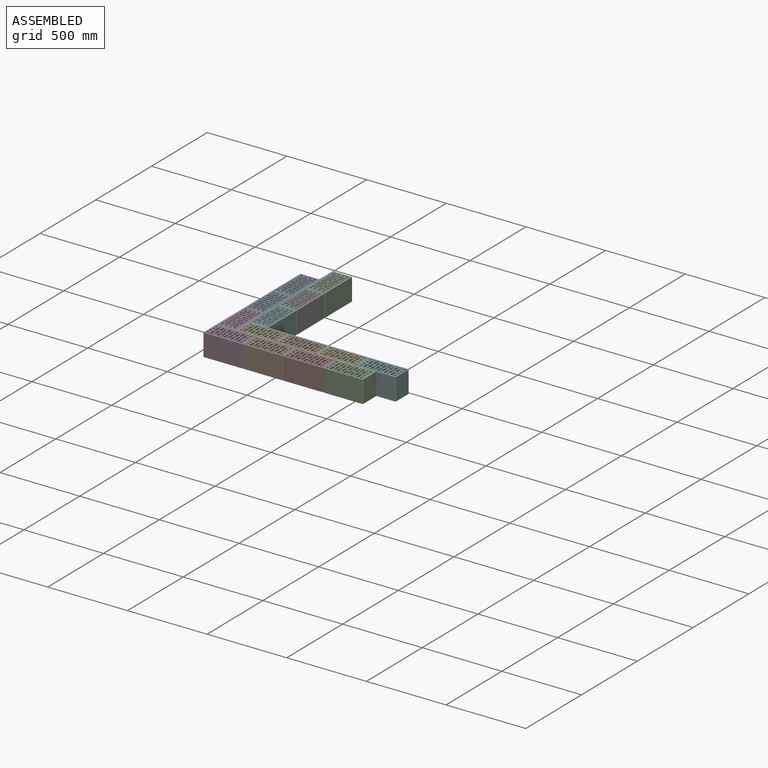
[diagram: assembled view]
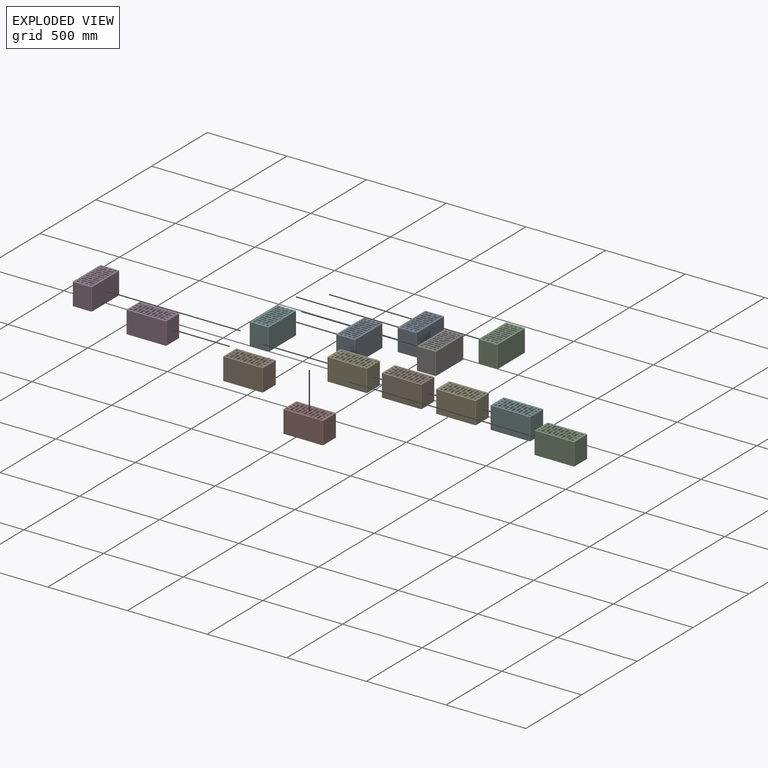
[diagram: exploded view]
GUIDED TOUR — MATED ASSEMBLY (Onshape document d00dda605315c99455ef604f, AutoMate assembly d00dda605315c99455ef604f_c54329f47a431f72054a30cd_6bd2495ca805d1d809e94f07_default)

This assembly has 14 components, labeled P0..P13 below (a component is one placed occurrence of a part; the same part can appear more than once), held together by 9 mates. A mate is a constraint between two components; its type names the relative motion it leaves free:
  PLANAR — leaves sliding in the plane through the listed point (normal = the listed direction) and rotation about that normal free.
Axis/direction vectors are unit vectors and 'through' points are millimeter coordinates, both in the assembly's world frame.

MATES
  1. PLANAR "Planar 1": P3 <-> P11, direction (0.000, -1.000, 0.000) through (6.62, -196.38, 153.38) mm
  2. PLANAR "Planar 5": P4 <-> P3, direction (-1.000, 0.000, 0.000) through (67.62, -136.38, 222.38) mm
  3. PLANAR "Planar 9": P13 <-> P3, direction (-1.000, 0.000, 0.000) through (67.62, 49.62, 222.38) mm
  4. PLANAR "Planar 4": P4 <-> P3, direction (0.000, 0.000, 1.000) through (180.09, -132.63, 291.38) mm
  5. PLANAR "Planar 8": P13 <-> P3, direction (0.000, 0.000, -1.000) through (161.12, 16.88, 291.38) mm
  6. PLANAR "Planar 3": P3 <-> P11, direction (0.000, 0.000, 1.000) through (-4.13, -82.92, 291.38) mm
  7. PLANAR "Planar 6": P4 <-> P11, direction (0.000, -1.000, 0.000) through (192.62, -196.38, 222.38) mm
  8. PLANAR "Planar 7": P13 <-> P4, direction (0.000, -1.000, 0.000) through (127.62, -75.38, 222.38) mm
  9. PLANAR "Planar 2": P11 <-> P3, direction (-1.000, 0.000, 0.000) through (-53.38, -257.38, 222.38) mm

ASSEMBLY ORDER
  1. P13 — the base component [order verified]
  2. P6 [order verified]
  3. P2 [order verified]
  4. P8 [order verified]
  5. P11 [order verified]
  6. P0 [order verified]
  7. P4 [order verified]
  8. P1 [order verified]
  9. P12 [order verified]
  10. P3 [order verified]
  11. P5 [order verified]
  12. P10 [order verified]
  13. P9 [order verified]
  14. P7 [order verified]
Order-tag legend:
  [order verified] — this step's position reverses a verified removal order: the component was checked to insert without passing through the ones already placed.

Of the 14 components, 14 carry the full construction recipe — the FeatureScript program that regenerates the part's solid from scratch; the rest are supplied as boundary geometry only.
Because this assembly has more than 12 components, the tour below covers the 12 most significant ones individually (every recipe-attached component first, then the largest by part volume), in assembly order; the remaining 2 are summarized together in a grouped section at the end.
Each toured component is shown spotlighted twice — in the assembled view, then in the exploded view, where a leader line traces a displaced component back to its assembled socket (saturated green if recipe-attached, orange if geometry-only; every other component desaturated gray) — followed by its recipe or geometry summary and the mates that hold it.
NOTE — this tour is split across 2 documents so each fits a 32k-token context. This is document 1: the component sections continue in the remaining 1 document, each repeating the header above.
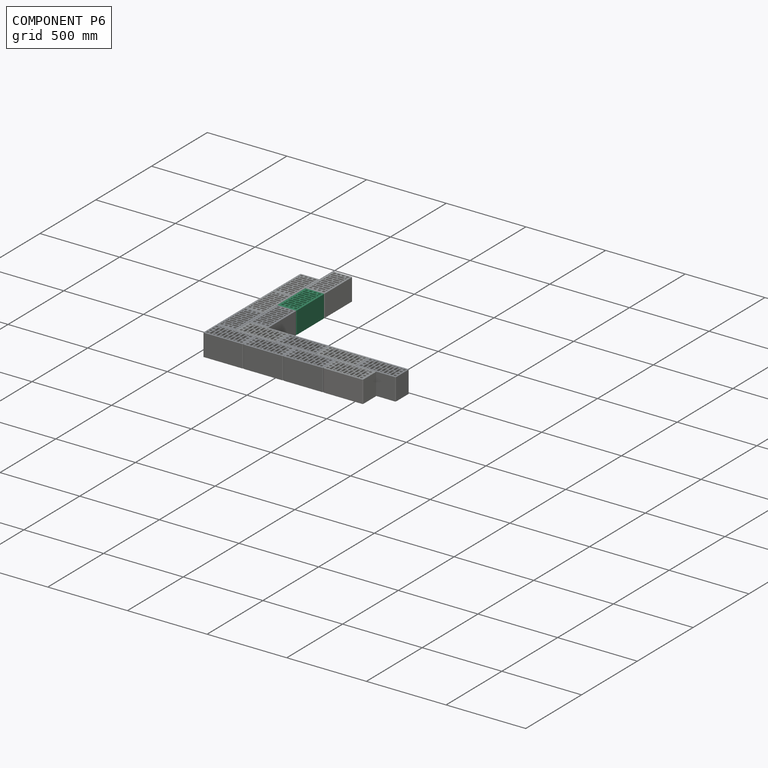
[diagram: component P6 — assembled]
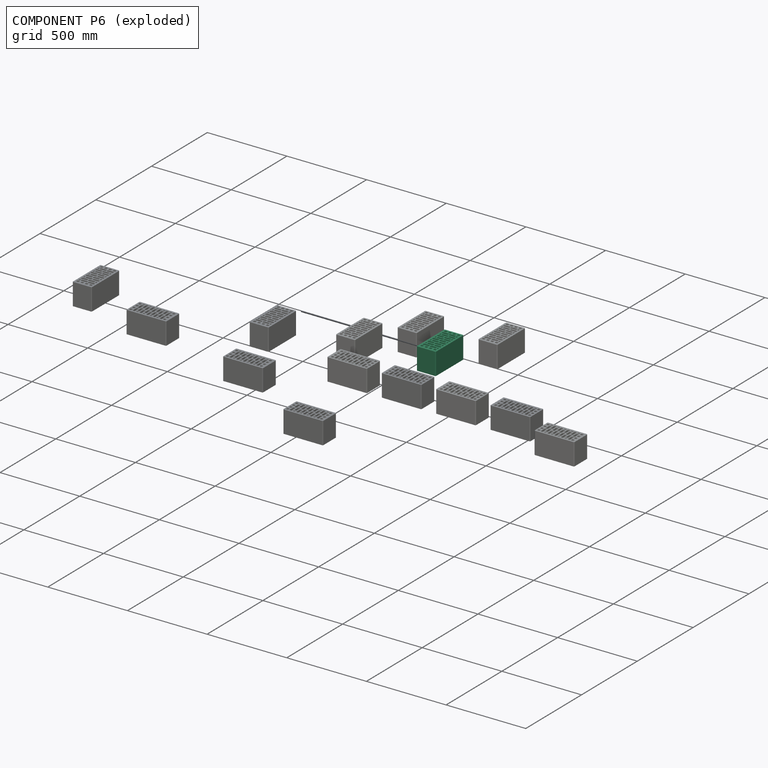
[diagram: component P6 — exploded]
COMPONENT P6 — same part as P0 (CADFS 00792924); its construction recipe is shown at P0.
Held by: no mates (free).
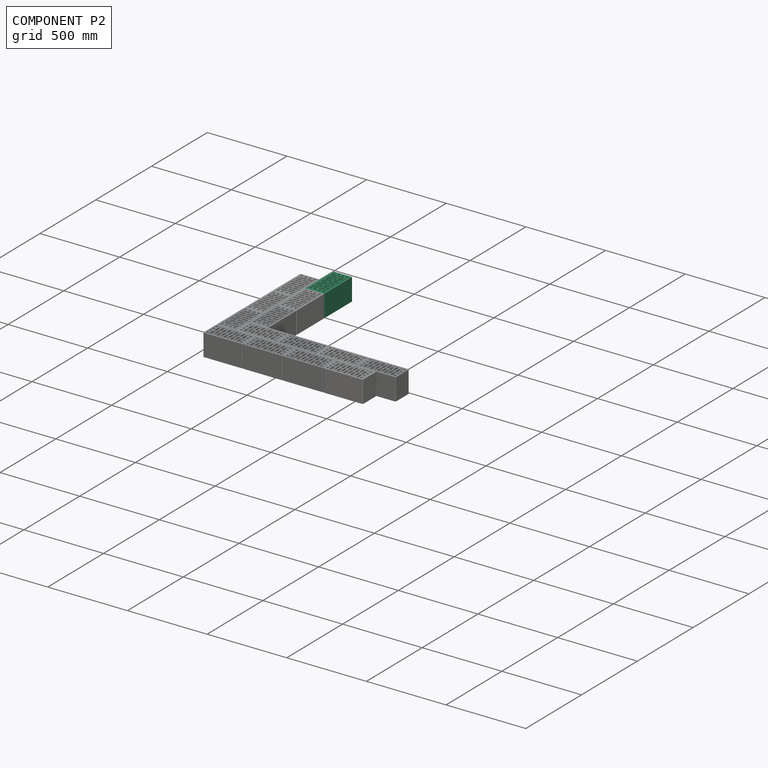
[diagram: component P2 — assembled]
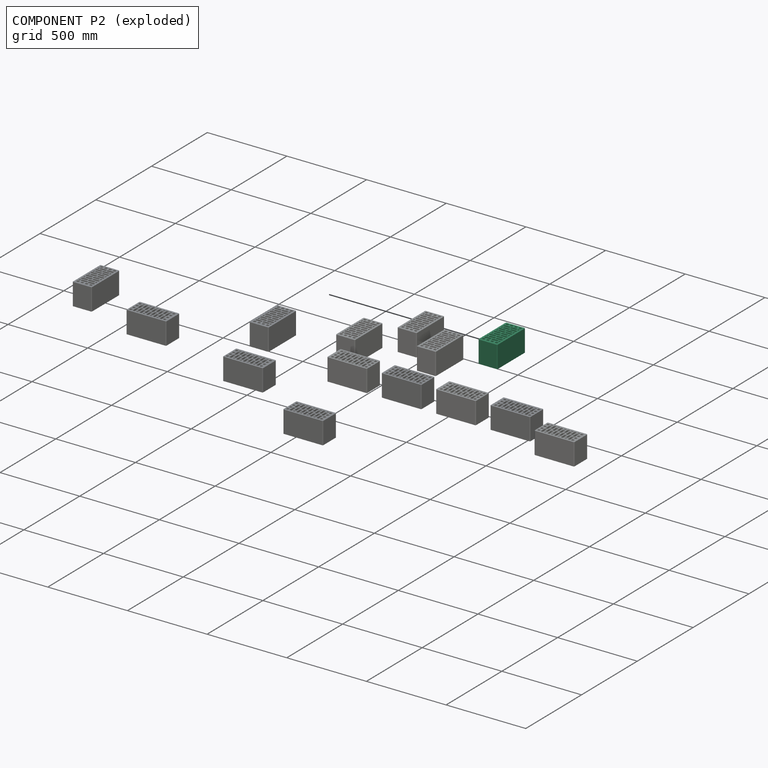
[diagram: component P2 — exploded]
COMPONENT P2 — same part as P0 (CADFS 00792924); its construction recipe is shown at P0.
Held by: no mates (free).
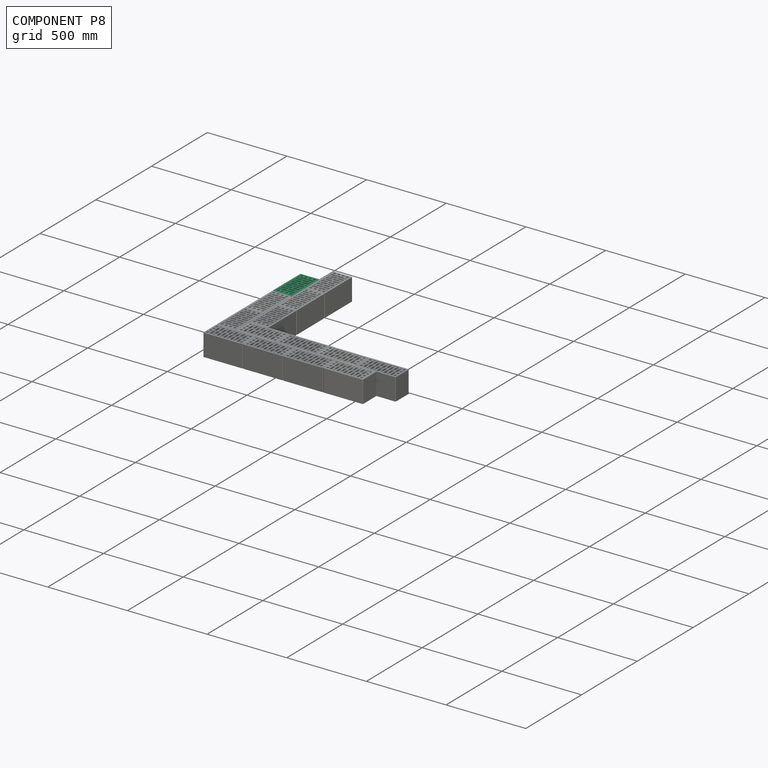
[diagram: component P8 — assembled]
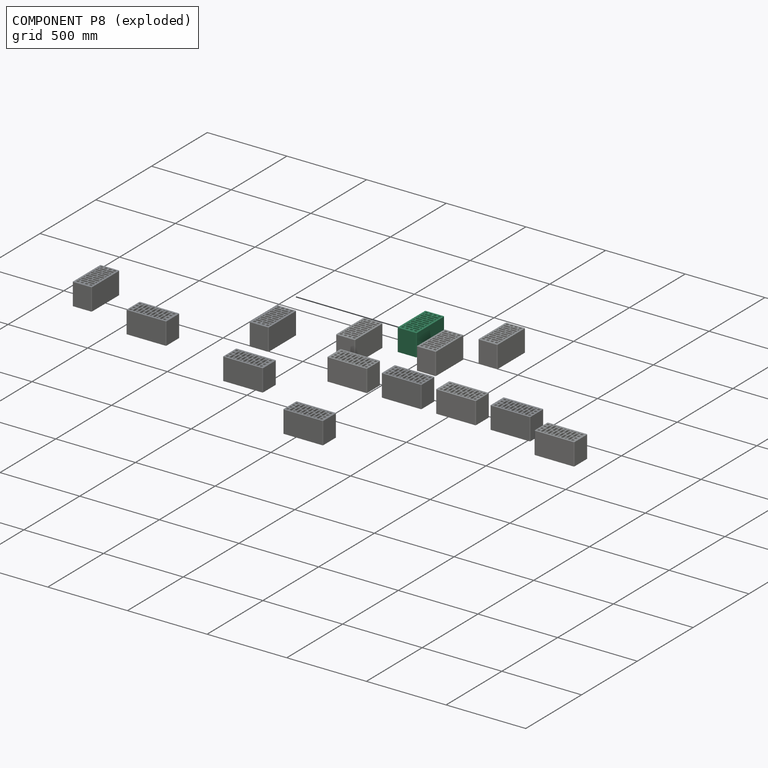
[diagram: component P8 — exploded]
COMPONENT P8 — same part as P0 (CADFS 00792924); its construction recipe is shown at P0.
Held by: no mates (free).
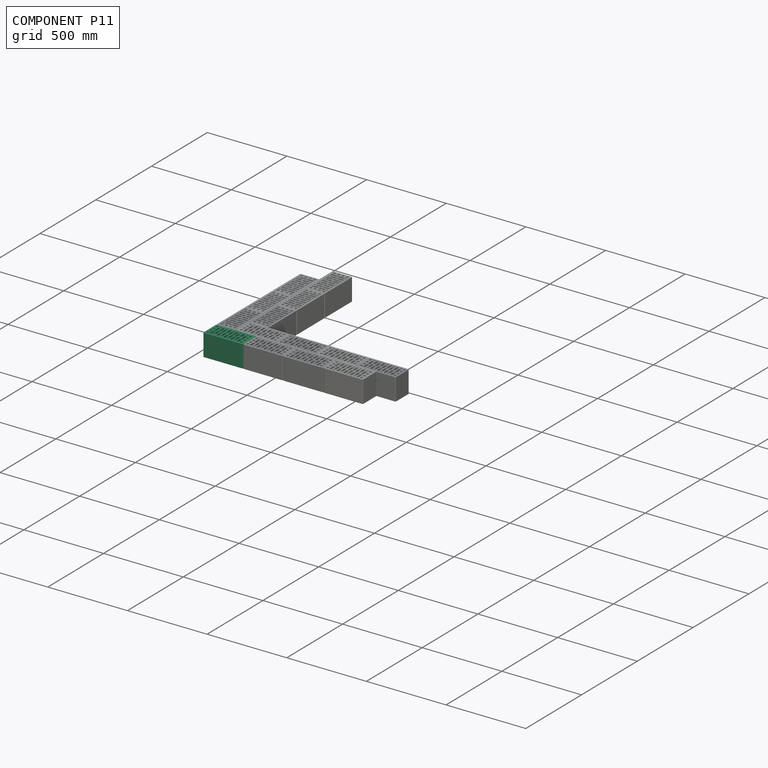
[diagram: component P11 — assembled]
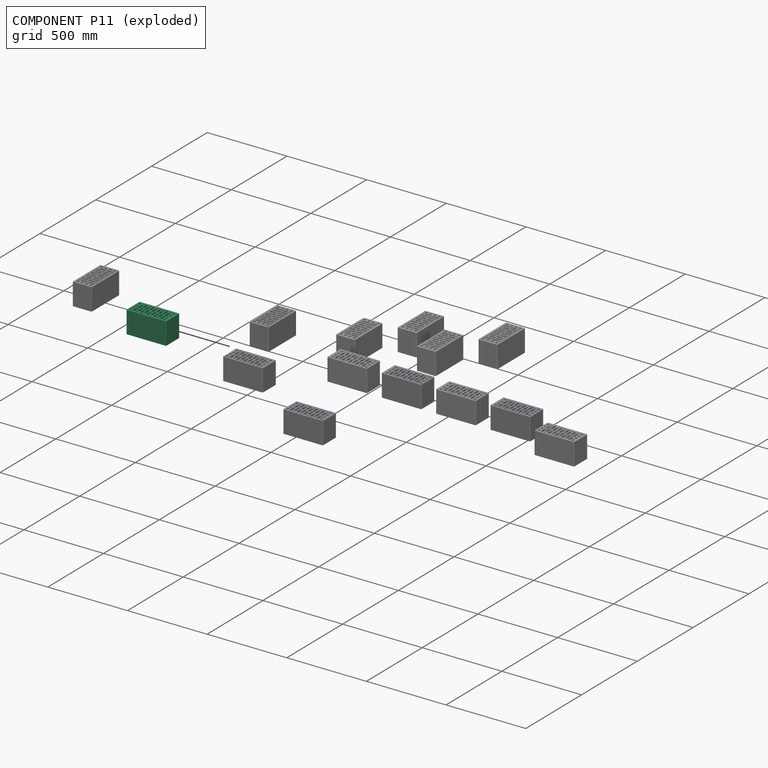
[diagram: component P11 — exploded]
COMPONENT P11 — same part as P0 (CADFS 00792924); its construction recipe is shown at P0.
Held by: PLANAR mate "Planar 1" to P3; PLANAR mate "Planar 3" to P3; PLANAR mate "Planar 6" to P4; PLANAR mate "Planar 2" to P3.
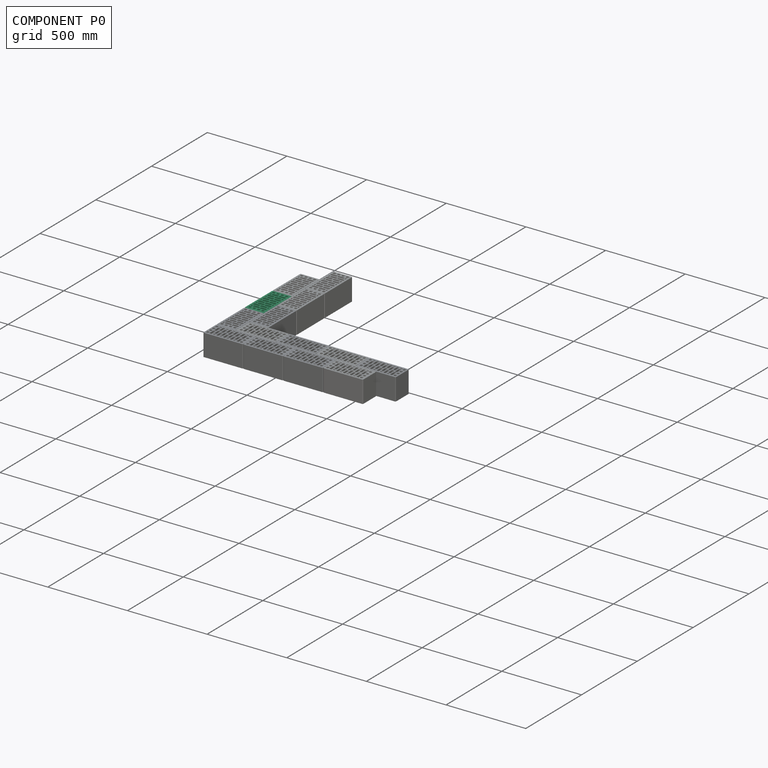
[diagram: component P0 — assembled]
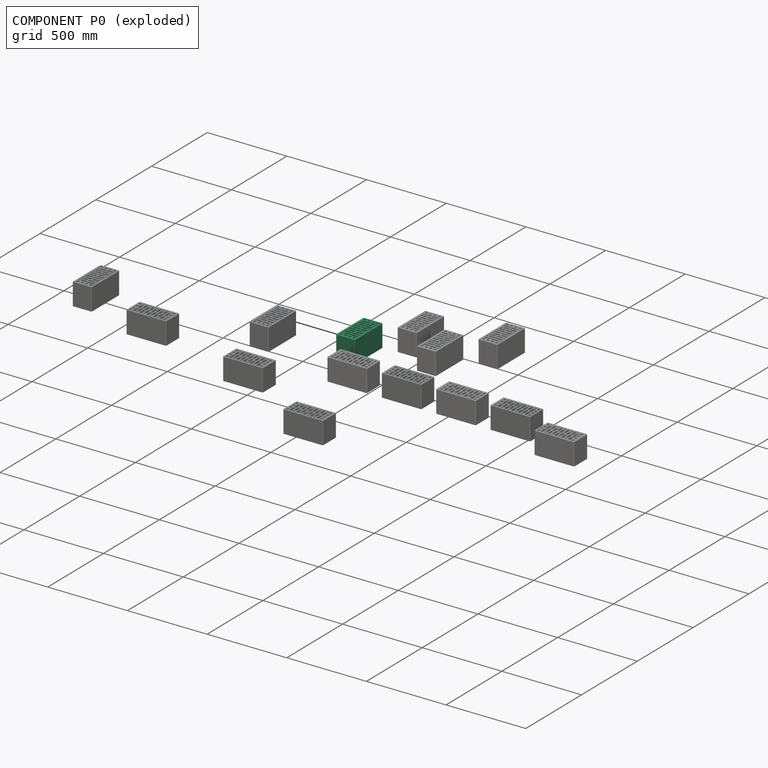
[diagram: component P0 — exploded]
COMPONENT P0 — recipe-attached (CADFS 00792924, mesh-verified: the recipe's output STEP matches this component's geometry to below the mesh-comparison resolution (tessellation chordal tolerance ~0.465 mm)).
Held by: no mates (free).
Construction recipe (FeatureScript — the CAD program that rebuilds this solid; sketch coordinates are in the units given by the * unit suffixes, e.g. mm):

FeatureScript 1511;
import(path : "onshape/std/geometry.fs", version : "1511.0");
import(path : "onshape/std/common.fs", version : "1511.0");
const mm = millimeter;
const VERTEX = EntityType.VERTEX;
const EDGE = EntityType.EDGE;
const FACE = EntityType.FACE;
const BODY = EntityType.BODY;
function v(x, y){return vector(x, y);}
function OD(order){return orderDisambiguation(order);}
function OSD(set){return originalSetDisambiguation(set);}
function TD(topology){return topologyDisambiguation(topology);}
function TDD(query){return trueDependencyDisambiguation(query);}
function sQuery(a, b, c) {return sketchEntityQuery(a, b, c);}

annotation { "Feature Type Name" : "Feature", "Feature Type Description" : "" }
export const myFeature = defineFeature(function(context is Context, id is Id, definition is map)
    precondition{}
    {
        {
            var Q0;
            Q0=qCreatedBy(makeId("Top.planeOp"),FACE);
            var sketch = newSketch(context, id + "F0", { "sketchPlane" : qUnion([Q0])});
            skLineSegment(sketch, "E0.bottom", {"start": v(120, 60) * mm, "end": v(-120, 60) * mm});
            skLineSegment(sketch, "E0.top", {"start": v(120, -60) * mm, "end": v(-120, -60) * mm});
            skLineSegment(sketch, "E0.left", {"start": v(125, 55) * mm, "end": v(125, -55) * mm});
            skLineSegment(sketch, "E0.right", {"start": v(-125, 55) * mm, "end": v(-125, -55) * mm});
            skPoint(sketch, "E0.middle", {"position": v(0, 0) * mm});
            skPoint(sketch, "E1.visualSharp", {"position": v(-125, 60) * mm});
            skArc(sketch, "E1.filletArc", {"start": v(-120, 60) * mm, "mid": v(-123.54, 58.54) * mm, "end": v(-125, 55) * mm});
            skPoint(sketch, "E2.visualSharp", {"position": v(-125, -60) * mm});
            skArc(sketch, "E2.filletArc", {"start": v(-125, -55) * mm, "mid": v(-123.54, -58.54) * mm, "end": v(-120, -60) * mm});
            skPoint(sketch, "E3.visualSharp", {"position": v(125, -60) * mm});
            skArc(sketch, "E3.filletArc", {"start": v(120, -60) * mm, "mid": v(123.54, -58.54) * mm, "end": v(125, -55) * mm});
            skPoint(sketch, "E4.visualSharp", {"position": v(125, 60) * mm});
            skArc(sketch, "E4.filletArc", {"start": v(125, 55) * mm, "mid": v(123.54, 58.54) * mm, "end": v(120, 60) * mm});
            skLineSegment(sketch, "E5.bottom", {"start": v(-97.34, 48) * mm, "end": v(-109.34, 48) * mm});
            skLineSegment(sketch, "E5.top", {"start": v(-97.34, 33) * mm, "end": v(-109.34, 33) * mm});
            skLineSegment(sketch, "E5.left", {"start": v(-96.34, 47) * mm, "end": v(-96.34, 34) * mm});
            skLineSegment(sketch, "E5.right", {"start": v(-110.34, 47) * mm, "end": v(-110.34, 34) * mm});
            skPoint(sketch, "E5.middle", {"position": v(-103.34, 40.5) * mm});
            skPoint(sketch, "E6.visualSharp", {"position": v(-110.34, 48) * mm});
            skArc(sketch, "E6.filletArc", {"start": v(-109.34, 48) * mm, "mid": v(-110.04, 47.7) * mm, "end": v(-110.34, 47) * mm});
            skPoint(sketch, "E7.visualSharp", {"position": v(-96.34, 48) * mm});
            skArc(sketch, "E7.filletArc", {"start": v(-96.34, 47) * mm, "mid": v(-96.63, 47.7) * mm, "end": v(-97.34, 48) * mm});
            skPoint(sketch, "E8.visualSharp", {"position": v(-96.34, 33) * mm});
            skArc(sketch, "E8.filletArc", {"start": v(-97.34, 33) * mm, "mid": v(-96.63, 33.3) * mm, "end": v(-96.34, 34) * mm});
            skPoint(sketch, "E9.visualSharp", {"position": v(-110.34, 33) * mm});
            skArc(sketch, "E9.filletArc", {"start": v(-110.34, 34) * mm, "mid": v(-110.04, 33.3) * mm, "end": v(-109.34, 33) * mm});
            skPoint(sketch, "E10.0.1.0", {"position": v(-103.34, 13.5) * mm});
            skLineSegment(sketch, "E10.0.1.1", {"start": v(-97.34, 21) * mm, "end": v(-109.34, 21) * mm});
            skPoint(sketch, "E10.0.1.2", {"position": v(-110.34, 6) * mm});
            skLineSegment(sketch, "E10.0.1.3", {"start": v(-97.34, 6) * mm, "end": v(-109.34, 6) * mm});
            skLineSegment(sketch, "E10.0.1.4", {"start": v(-96.34, 20) * mm, "end": v(-96.34, 7) * mm});
            skLineSegment(sketch, "E10.0.1.5", {"start": v(-110.34, 20) * mm, "end": v(-110.34, 7) * mm});
            skPoint(sketch, "E10.0.1.6", {"position": v(-110.34, 21) * mm});
            skPoint(sketch, "E10.0.1.7", {"position": v(-96.34, 21) * mm});
            skPoint(sketch, "E10.0.1.8", {"position": v(-96.34, 6) * mm});
            skArc(sketch, "E10.0.1.9", {"start": v(-97.34, 6) * mm, "mid": v(-96.63, 6.3) * mm, "end": v(-96.34, 7) * mm});
            skArc(sketch, "E10.0.1.10", {"start": v(-110.34, 7) * mm, "mid": v(-110.04, 6.3) * mm, "end": v(-109.34, 6) * mm});
            skArc(sketch, "E10.0.1.11", {"start": v(-109.34, 21) * mm, "mid": v(-110.04, 20.7) * mm, "end": v(-110.34, 20) * mm});
            skArc(sketch, "E10.0.1.12", {"start": v(-96.34, 20) * mm, "mid": v(-96.63, 20.7) * mm, "end": v(-97.34, 21) * mm});
            skPoint(sketch, "E10.0.2.0", {"position": v(-103.34, -13.5) * mm});
            skLineSegment(sketch, "E10.0.2.1", {"start": v(-97.34, -6) * mm, "end": v(-109.34, -6) * mm});
            skPoint(sketch, "E10.0.2.2", {"position": v(-110.34, -21) * mm});
            skLineSegment(sketch, "E10.0.2.3", {"start": v(-97.34, -21) * mm, "end": v(-109.34, -21) * mm});
            skLineSegment(sketch, "E10.0.2.4", {"start": v(-96.34, -7) * mm, "end": v(-96.34, -20) * mm});
            skLineSegment(sketch, "E10.0.2.5", {"start": v(-110.34, -7) * mm, "end": v(-110.34, -20) * mm});
            skPoint(sketch, "E10.0.2.6", {"position": v(-110.34, -6) * mm});
            skPoint(sketch, "E10.0.2.7", {"position": v(-96.34, -6) * mm});
            skPoint(sketch, "E10.0.2.8", {"position": v(-96.34, -21) * mm});
            skArc(sketch, "E10.0.2.9", {"start": v(-97.34, -21) * mm, "mid": v(-96.63, -20.7) * mm, "end": v(-96.34, -20) * mm});
            skArc(sketch, "E10.0.2.10", {"start": v(-110.34, -20) * mm, "mid": v(-110.04, -20.7) * mm, "end": v(-109.34, -21) * mm});
            skArc(sketch, "E10.0.2.11", {"start": v(-109.34, -6) * mm, "mid": v(-110.04, -6.3) * mm, "end": v(-110.34, -7) * mm});
            skArc(sketch, "E10.0.2.12", {"start": v(-96.34, -7) * mm, "mid": v(-96.63, -6.3) * mm, "end": v(-97.34, -6) * mm});
            skPoint(sketch, "E10.0.3.0", {"position": v(-103.34, -40.5) * mm});
            skLineSegment(sketch, "E10.0.3.1", {"start": v(-97.34, -33) * mm, "end": v(-109.34, -33) * mm});
            skPoint(sketch, "E10.0.3.2", {"position": v(-110.34, -48) * mm});
            skLineSegment(sketch, "E10.0.3.3", {"start": v(-97.34, -48) * mm, "end": v(-109.34, -48) * mm});
            skLineSegment(sketch, "E10.0.3.4", {"start": v(-96.34, -34) * mm, "end": v(-96.34, -47) * mm});
            skLineSegment(sketch, "E10.0.3.5", {"start": v(-110.34, -34) * mm, "end": v(-110.34, -47) * mm});
            skPoint(sketch, "E10.0.3.6", {"position": v(-110.34, -33) * mm});
            skPoint(sketch, "E10.0.3.7", {"position": v(-96.34, -33) * mm});
            skPoint(sketch, "E10.0.3.8", {"position": v(-96.34, -48) * mm});
            skArc(sketch, "E10.0.3.9", {"start": v(-97.34, -48) * mm, "mid": v(-96.63, -47.7) * mm, "end": v(-96.34, -47) * mm});
            skArc(sketch, "E10.0.3.10", {"start": v(-110.34, -47) * mm, "mid": v(-110.04, -47.7) * mm, "end": v(-109.34, -48) * mm});
            skArc(sketch, "E10.0.3.11", {"start": v(-109.34, -33) * mm, "mid": v(-110.04, -33.3) * mm, "end": v(-110.34, -34) * mm});
            skArc(sketch, "E10.0.3.12", {"start": v(-96.34, -34) * mm, "mid": v(-96.63, -33.3) * mm, "end": v(-97.34, -33) * mm});
            skPoint(sketch, "E10.1.0.0", {"position": v(108.66, 40.5) * mm});
            skLineSegment(sketch, "E10.1.0.1", {"start": v(114.66, 48) * mm, "end": v(102.66, 48) * mm});
            skPoint(sketch, "E10.1.0.2", {"position": v(101.66, 33) * mm});
            skLineSegment(sketch, "E10.1.0.3", {"start": v(114.66, 33) * mm, "end": v(102.66, 33) * mm});
            skLineSegment(sketch, "E10.1.0.4", {"start": v(115.66, 47) * mm, "end": v(115.66, 34) * mm});
            skLineSegment(sketch, "E10.1.0.5", {"start": v(101.66, 47) * mm, "end": v(101.66, 34) * mm});
            skPoint(sketch, "E10.1.0.6", {"position": v(101.66, 48) * mm});
            skPoint(sketch, "E10.1.0.7", {"position": v(115.66, 48) * mm});
            skPoint(sketch, "E10.1.0.8", {"position": v(115.66, 33) * mm});
            skArc(sketch, "E10.1.0.9", {"start": v(114.66, 33) * mm, "mid": v(115.37, 33.3) * mm, "end": v(115.66, 34) * mm});
            skArc(sketch, "E10.1.0.10", {"start": v(101.66, 34) * mm, "mid": v(101.96, 33.3) * mm, "end": v(102.66, 33) * mm});
            skArc(sketch, "E10.1.0.11", {"start": v(102.66, 48) * mm, "mid": v(101.96, 47.7) * mm, "end": v(101.66, 47) * mm});
            skArc(sketch, "E10.1.0.12", {"start": v(115.66, 47) * mm, "mid": v(115.37, 47.7) * mm, "end": v(114.66, 48) * mm});
            skPoint(sketch, "E10.1.1.0", {"position": v(108.66, 13.5) * mm});
            skLineSegment(sketch, "E10.1.1.1", {"start": v(114.66, 21) * mm, "end": v(102.66, 21) * mm});
            skPoint(sketch, "E10.1.1.2", {"position": v(101.66, 6) * mm});
            skLineSegment(sketch, "E10.1.1.3", {"start": v(114.66, 6) * mm, "end": v(102.66, 6) * mm});
            skLineSegment(sketch, "E10.1.1.4", {"start": v(115.66, 20) * mm, "end": v(115.66, 7) * mm});
            skLineSegment(sketch, "E10.1.1.5", {"start": v(101.66, 20) * mm, "end": v(101.66, 7) * mm});
            skPoint(sketch, "E10.1.1.6", {"position": v(101.66, 21) * mm});
            skPoint(sketch, "E10.1.1.7", {"position": v(115.66, 21) * mm});
            skPoint(sketch, "E10.1.1.8", {"position": v(115.66, 6) * mm});
            skArc(sketch, "E10.1.1.9", {"start": v(114.66, 6) * mm, "mid": v(115.37, 6.3) * mm, "end": v(115.66, 7) * mm});
            skArc(sketch, "E10.1.1.10", {"start": v(101.66, 7) * mm, "mid": v(101.96, 6.3) * mm, "end": v(102.66, 6) * mm});
            skArc(sketch, "E10.1.1.11", {"start": v(102.66, 21) * mm, "mid": v(101.96, 20.7) * mm, "end": v(101.66, 20) * mm});
            skArc(sketch, "E10.1.1.12", {"start": v(115.66, 20) * mm, "mid": v(115.37, 20.7) * mm, "end": v(114.66, 21) * mm});
            skPoint(sketch, "E10.1.2.0", {"position": v(108.66, -13.5) * mm});
            skLineSegment(sketch, "E10.1.2.1", {"start": v(114.66, -6) * mm, "end": v(102.66, -6) * mm});
            skPoint(sketch, "E10.1.2.2", {"position": v(101.66, -21) * mm});
            skLineSegment(sketch, "E10.1.2.3", {"start": v(114.66, -21) * mm, "end": v(102.66, -21) * mm});
            skLineSegment(sketch, "E10.1.2.4", {"start": v(115.66, -7) * mm, "end": v(115.66, -20) * mm});
            skLineSegment(sketch, "E10.1.2.5", {"start": v(101.66, -7) * mm, "end": v(101.66, -20) * mm});
            skPoint(sketch, "E10.1.2.6", {"position": v(101.66, -6) * mm});
            skPoint(sketch, "E10.1.2.7", {"position": v(115.66, -6) * mm});
            skPoint(sketch, "E10.1.2.8", {"position": v(115.66, -21) * mm});
            skArc(sketch, "E10.1.2.9", {"start": v(114.66, -21) * mm, "mid": v(115.37, -20.7) * mm, "end": v(115.66, -20) * mm});
            skArc(sketch, "E10.1.2.10", {"start": v(101.66, -20) * mm, "mid": v(101.96, -20.7) * mm, "end": v(102.66, -21) * mm});
            skArc(sketch, "E10.1.2.11", {"start": v(102.66, -6) * mm, "mid": v(101.96, -6.3) * mm, "end": v(101.66, -7) * mm});
            skArc(sketch, "E10.1.2.12", {"start": v(115.66, -7) * mm, "mid": v(115.37, -6.3) * mm, "end": v(114.66, -6) * mm});
            skPoint(sketch, "E10.1.3.0", {"position": v(108.66, -40.5) * mm});
            skLineSegment(sketch, "E10.1.3.1", {"start": v(114.66, -33) * mm, "end": v(102.66, -33) * mm});
            skPoint(sketch, "E10.1.3.2", {"position": v(101.66, -48) * mm});
            skLineSegment(sketch, "E10.1.3.3", {"start": v(114.66, -48) * mm, "end": v(102.66, -48) * mm});
            skLineSegment(sketch, "E10.1.3.4", {"start": v(115.66, -34) * mm, "end": v(115.66, -47) * mm});
            skLineSegment(sketch, "E10.1.3.5", {"start": v(101.66, -34) * mm, "end": v(101.66, -47) * mm});
            skPoint(sketch, "E10.1.3.6", {"position": v(101.66, -33) * mm});
            skPoint(sketch, "E10.1.3.7", {"position": v(115.66, -33) * mm});
            skPoint(sketch, "E10.1.3.8", {"position": v(115.66, -48) * mm});
            skArc(sketch, "E10.1.3.9", {"start": v(114.66, -48) * mm, "mid": v(115.37, -47.7) * mm, "end": v(115.66, -47) * mm});
            skArc(sketch, "E10.1.3.10", {"start": v(101.66, -47) * mm, "mid": v(101.96, -47.7) * mm, "end": v(102.66, -48) * mm});
            skArc(sketch, "E10.1.3.11", {"start": v(102.66, -33) * mm, "mid": v(101.96, -33.3) * mm, "end": v(101.66, -34) * mm});
            skArc(sketch, "E10.1.3.12", {"start": v(115.66, -34) * mm, "mid": v(115.37, -33.3) * mm, "end": v(114.66, -33) * mm});
            skLineSegment(sketch, "E10.direction1", {"start": v(-110.34, 33) * mm, "end": v(101.66, 33) * mm, "construction": true});
            skLineSegment(sketch, "E10.direction2", {"start": v(-110.34, 33) * mm, "end": v(-110.34, 6) * mm, "construction": true});
            skLineSegment(sketch, "E11", {"start": v(-103.56, -60) * mm, "end": v(-103.56, -48) * mm, "construction": true});
            skLineSegment(sketch, "E12", {"start": v(-103.34, -33) * mm, "end": v(-103.34, -21) * mm, "construction": true});
            skLineSegment(sketch, "E13", {"start": v(-103.34, -6) * mm, "end": v(-103.34, 6) * mm, "construction": true});
            skLineSegment(sketch, "E14", {"start": v(-103.34, 21) * mm, "end": v(-103.34, 33) * mm, "construction": true});
            skLineSegment(sketch, "E15", {"start": v(-103.34, 48) * mm, "end": v(-103.34, 60) * mm, "construction": true});
            skSolve(sketch);
        }
        {
            var Q0;
            Q0=makeQuery(id+"F0.imprint","IMPRINT",FACE,{"disambiguationData":[TD([[makeQuery(id+"F0.imprint","IMPRINT",EDGE,{"derivedFrom":sQuery(id+"F0.wireOp",EDGE,"E0.bottom")}),1.0]])]});
            extrude(context, id + "F1", {"entities" : qUnion([Q0]), "depth" : 138 * mm, "offsetDistance" : 25 * mm});
        }
        {
            var Q0;
            Q0=makeQuery(id+"F1.opExtrude","CAP_FACE",FACE,{"disambiguationData":[OSD([sQuery(id+"F0.wireOp",EDGE,"E0.bottom"),sQuery(id+"F0.wireOp",EDGE,"E0.top"),sQuery(id+"F0.wireOp",EDGE,"E0.left"),sQuery(id+"F0.wireOp",EDGE,"E0.right"),sQuery(id+"F0.wireOp",EDGE,"E1.filletArc"),sQuery(id+"F0.wireOp",EDGE,"E2.filletArc"),sQuery(id+"F0.wireOp",EDGE,"E3.filletArc"),sQuery(id+"F0.wireOp",EDGE,"E4.filletArc"),sQuery(id+"F0.wireOp",EDGE,"E5.bottom"),sQuery(id+"F0.wireOp",EDGE,"E5.top"),sQuery(id+"F0.wireOp",EDGE,"E5.left"),sQuery(id+"F0.wireOp",EDGE,"E5.right"),sQuery(id+"F0.wireOp",EDGE,"E6.filletArc"),sQuery(id+"F0.wireOp",EDGE,"E7.filletArc"),sQuery(id+"F0.wireOp",EDGE,"E8.filletArc"),sQuery(id+"F0.wireOp",EDGE,"E9.filletArc"),sQuery(id+"F0.wireOp",EDGE,"E10.0.1.1"),sQuery(id+"F0.wireOp",EDGE,"E10.0.1.3"),sQuery(id+"F0.wireOp",EDGE,"E10.0.1.4"),sQuery(id+"F0.wireOp",EDGE,"E10.0.1.5"),sQuery(id+"F0.wireOp",EDGE,"E10.0.1.9"),sQuery(id+"F0.wireOp",EDGE,"E10.0.1.10"),sQuery(id+"F0.wireOp",EDGE,"E10.0.1.11"),sQuery(id+"F0.wireOp",EDGE,"E10.0.1.12"),sQuery(id+"F0.wireOp",EDGE,"E10.0.2.1"),sQuery(id+"F0.wireOp",EDGE,"E10.0.2.3"),sQuery(id+"F0.wireOp",EDGE,"E10.0.2.4"),sQuery(id+"F0.wireOp",EDGE,"E10.0.2.5"),sQuery(id+"F0.wireOp",EDGE,"E10.0.2.9"),sQuery(id+"F0.wireOp",EDGE,"E10.0.2.10"),sQuery(id+"F0.wireOp",EDGE,"E10.0.2.11"),sQuery(id+"F0.wireOp",EDGE,"E10.0.2.12"),sQuery(id+"F0.wireOp",EDGE,"E10.0.3.1"),sQuery(id+"F0.wireOp",EDGE,"E10.0.3.3"),sQuery(id+"F0.wireOp",EDGE,"E10.0.3.4"),sQuery(id+"F0.wireOp",EDGE,"E10.0.3.5"),sQuery(id+"F0.wireOp",EDGE,"E10.0.3.9"),sQuery(id+"F0.wireOp",EDGE,"E10.0.3.10"),sQuery(id+"F0.wireOp",EDGE,"E10.0.3.11"),sQuery(id+"F0.wireOp",EDGE,"E10.0.3.12"),sQuery(id+"F0.wireOp",EDGE,"E10.1.0.1"),sQuery(id+"F0.wireOp",EDGE,"E10.1.0.3"),sQuery(id+"F0.wireOp",EDGE,"E10.1.0.4"),sQuery(id+"F0.wireOp",EDGE,"E10.1.0.5"),sQuery(id+"F0.wireOp",EDGE,"E10.1.0.9"),sQuery(id+"F0.wireOp",EDGE,"E10.1.0.10"),sQuery(id+"F0.wireOp",EDGE,"E10.1.0.11"),sQuery(id+"F0.wireOp",EDGE,"E10.1.0.12"),sQuery(id+"F0.wireOp",EDGE,"E10.1.1.1"),sQuery(id+"F0.wireOp",EDGE,"E10.1.1.3"),sQuery(id+"F0.wireOp",EDGE,"E10.1.1.4"),sQuery(id+"F0.wireOp",EDGE,"E10.1.1.5"),sQuery(id+"F0.wireOp",EDGE,"E10.1.1.9"),sQuery(id+"F0.wireOp",EDGE,"E10.1.1.10"),sQuery(id+"F0.wireOp",EDGE,"E10.1.1.11"),sQuery(id+"F0.wireOp",EDGE,"E10.1.1.12"),sQuery(id+"F0.wireOp",EDGE,"E10.1.2.1"),sQuery(id+"F0.wireOp",EDGE,"E10.1.2.3"),sQuery(id+"F0.wireOp",EDGE,"E10.1.2.4"),sQuery(id+"F0.wireOp",EDGE,"E10.1.2.5"),sQuery(id+"F0.wireOp",EDGE,"E10.1.2.9"),sQuery(id+"F0.wireOp",EDGE,"E10.1.2.10"),sQuery(id+"F0.wireOp",EDGE,"E10.1.2.11"),sQuery(id+"F0.wireOp",EDGE,"E10.1.2.12"),sQuery(id+"F0.wireOp",EDGE,"E10.1.3.1"),sQuery(id+"F0.wireOp",EDGE,"E10.1.3.3"),sQuery(id+"F0.wireOp",EDGE,"E10.1.3.4"),sQuery(id+"F0.wireOp",EDGE,"E10.1.3.5"),sQuery(id+"F0.wireOp",EDGE,"E10.1.3.9"),sQuery(id+"F0.wireOp",EDGE,"E10.1.3.10"),sQuery(id+"F0.wireOp",EDGE,"E10.1.3.11"),sQuery(id+"F0.wireOp",EDGE,"E10.1.3.12")])],"isStart":false});
            var sketch = newSketch(context, id + "F2", { "sketchPlane" : qUnion([Q0])});
            skLineSegment(sketch, "E16.bottom", {"start": v(-76.14, -9.75) * mm, "end": v(-88.14, -9.75) * mm});
            skLineSegment(sketch, "E16.top", {"start": v(-76.14, -48) * mm, "end": v(-88.14, -48) * mm});
            skLineSegment(sketch, "E16.left", {"start": v(-75.14, -10.75) * mm, "end": v(-75.14, -47) * mm});
            skLineSegment(sketch, "E16.right", {"start": v(-89.14, -10.75) * mm, "end": v(-89.14, -47) * mm});
            skArc(sketch, "E17.filletArc", {"start": v(-88.14, -9.75) * mm, "mid": v(-88.84, -10.04) * mm, "end": v(-89.14, -10.75) * mm});
            skArc(sketch, "E18.filletArc", {"start": v(-75.14, -10.75) * mm, "mid": v(-75.43, -10.04) * mm, "end": v(-76.14, -9.75) * mm});
            skPoint(sketch, "E19.visualSharp", {"position": v(-75.14, -48) * mm});
            skArc(sketch, "E19.filletArc", {"start": v(-76.14, -48) * mm, "mid": v(-75.43, -47.7) * mm, "end": v(-75.14, -47) * mm});
            skPoint(sketch, "E20.visualSharp", {"position": v(-89.14, -48) * mm});
            skArc(sketch, "E20.filletArc", {"start": v(-89.14, -47) * mm, "mid": v(-88.84, -47.7) * mm, "end": v(-88.14, -48) * mm});
            skLineSegment(sketch, "E21", {"start": v(-96.34, -40.5) * mm, "end": v(-89.14, -40.5) * mm, "construction": true});
            skLineSegment(sketch, "E22.bottom", {"start": v(-76.14, 34.5) * mm, "end": v(-88.14, 34.5) * mm});
            skLineSegment(sketch, "E22.top", {"start": v(-76.14, -3.75) * mm, "end": v(-88.14, -3.75) * mm});
            skLineSegment(sketch, "E22.left", {"start": v(-75.14, 33.5) * mm, "end": v(-75.14, -2.75) * mm});
            skLineSegment(sketch, "E22.right", {"start": v(-89.14, 33.5) * mm, "end": v(-89.14, -2.75) * mm});
            skArc(sketch, "E23.filletArc", {"start": v(-88.14, 34.5) * mm, "mid": v(-88.84, 34.2) * mm, "end": v(-89.14, 33.5) * mm});
            skArc(sketch, "E24.filletArc", {"start": v(-75.14, 33.5) * mm, "mid": v(-75.43, 34.2) * mm, "end": v(-76.14, 34.5) * mm});
            skArc(sketch, "E25.filletArc", {"start": v(-76.14, -3.75) * mm, "mid": v(-75.43, -3.46) * mm, "end": v(-75.14, -2.75) * mm});
            skArc(sketch, "E26.filletArc", {"start": v(-89.14, -2.75) * mm, "mid": v(-88.84, -3.46) * mm, "end": v(-88.14, -3.75) * mm});
            skLineSegment(sketch, "E27.bottom", {"start": v(-76.14, 48) * mm, "end": v(-88.14, 48) * mm});
            skLineSegment(sketch, "E27.top", {"start": v(-76.14, 40.5) * mm, "end": v(-88.14, 40.5) * mm});
            skLineSegment(sketch, "E27.left", {"start": v(-75.14, 47) * mm, "end": v(-75.14, 41.5) * mm});
            skLineSegment(sketch, "E27.right", {"start": v(-89.14, 47) * mm, "end": v(-89.14, 41.5) * mm});
            skArc(sketch, "E28.filletArc", {"start": v(-88.14, 48) * mm, "mid": v(-88.84, 47.7) * mm, "end": v(-89.14, 47) * mm});
            skArc(sketch, "E29.filletArc", {"start": v(-75.14, 47) * mm, "mid": v(-75.43, 47.7) * mm, "end": v(-76.14, 48) * mm});
            skArc(sketch, "E30.filletArc", {"start": v(-76.14, 40.5) * mm, "mid": v(-75.43, 40.8) * mm, "end": v(-75.14, 41.5) * mm});
            skArc(sketch, "E31.filletArc", {"start": v(-89.14, 41.5) * mm, "mid": v(-88.84, 40.8) * mm, "end": v(-88.14, 40.5) * mm});
            skLineSegment(sketch, "E32", {"start": v(-82.14, -9.75) * mm, "end": v(-82.14, -3.75) * mm, "construction": true});
            skLineSegment(sketch, "E33", {"start": v(-82.14, 34.5) * mm, "end": v(-82.14, 40.5) * mm, "construction": true});
            skLineSegment(sketch, "E34", {"start": v(-96.34, 44.97) * mm, "end": v(-89.14, 44.97) * mm, "construction": true});
            skPoint(sketch, "E34.endSnap0", {"position": v(-89.14, 44.25) * mm});
            skLineSegment(sketch, "E35", {"start": v(-96.34, 40.5) * mm, "end": v(-88.14, 40.5) * mm, "construction": true});
            skLineSegment(sketch, "E36.bottom", {"start": v(-66.94, 9.75) * mm, "end": v(-54.94, 9.75) * mm});
            skLineSegment(sketch, "E36.top", {"start": v(-66.94, 48) * mm, "end": v(-54.94, 48) * mm});
            skLineSegment(sketch, "E36.left", {"start": v(-67.94, 10.75) * mm, "end": v(-67.94, 47) * mm});
            skLineSegment(sketch, "E36.right", {"start": v(-53.94, 10.75) * mm, "end": v(-53.94, 47) * mm});
            skArc(sketch, "E37.filletArc", {"start": v(-54.94, 9.75) * mm, "mid": v(-54.23, 10.04) * mm, "end": v(-53.94, 10.75) * mm});
            skArc(sketch, "E38.filletArc", {"start": v(-67.94, 10.75) * mm, "mid": v(-67.64, 10.04) * mm, "end": v(-66.94, 9.75) * mm});
            skPoint(sketch, "E39.visualSharp", {"position": v(-67.94, 48) * mm});
            skArc(sketch, "E39.filletArc", {"start": v(-66.94, 48) * mm, "mid": v(-67.64, 47.7) * mm, "end": v(-67.94, 47) * mm});
            skPoint(sketch, "E40.visualSharp", {"position": v(-53.94, 48) * mm});
            skArc(sketch, "E40.filletArc", {"start": v(-53.94, 47) * mm, "mid": v(-54.23, 47.7) * mm, "end": v(-54.94, 48) * mm});
            skLineSegment(sketch, "E41.bottom", {"start": v(-66.94, -34.5) * mm, "end": v(-54.94, -34.5) * mm});
            skLineSegment(sketch, "E41.top", {"start": v(-66.94, 3.75) * mm, "end": v(-54.94, 3.75) * mm});
            skLineSegment(sketch, "E41.left", {"start": v(-67.94, -33.5) * mm, "end": v(-67.94, 2.75) * mm});
            skLineSegment(sketch, "E41.right", {"start": v(-53.94, -33.5) * mm, "end": v(-53.94, 2.75) * mm});
            skArc(sketch, "E42.filletArc", {"start": v(-54.94, -34.5) * mm, "mid": v(-54.23, -34.2) * mm, "end": v(-53.94, -33.5) * mm});
            skArc(sketch, "E43.filletArc", {"start": v(-67.94, -33.5) * mm, "mid": v(-67.64, -34.2) * mm, "end": v(-66.94, -34.5) * mm});
            skArc(sketch, "E44.filletArc", {"start": v(-66.94, 3.75) * mm, "mid": v(-67.64, 3.46) * mm, "end": v(-67.94, 2.75) * mm});
            skArc(sketch, "E45.filletArc", {"start": v(-53.94, 2.75) * mm, "mid": v(-54.23, 3.46) * mm, "end": v(-54.94, 3.75) * mm});
            skLineSegment(sketch, "E46.bottom", {"start": v(-66.94, -48) * mm, "end": v(-54.94, -48) * mm});
            skLineSegment(sketch, "E46.top", {"start": v(-66.94, -40.5) * mm, "end": v(-54.94, -40.5) * mm});
            skLineSegment(sketch, "E46.left", {"start": v(-67.94, -47) * mm, "end": v(-67.94, -41.5) * mm});
            skLineSegment(sketch, "E46.right", {"start": v(-53.94, -47) * mm, "end": v(-53.94, -41.5) * mm});
            skArc(sketch, "E47.filletArc", {"start": v(-54.94, -48) * mm, "mid": v(-54.23, -47.7) * mm, "end": v(-53.94, -47) * mm});
            skArc(sketch, "E48.filletArc", {"start": v(-67.94, -47) * mm, "mid": v(-67.64, -47.7) * mm, "end": v(-66.94, -48) * mm});
            skArc(sketch, "E49.filletArc", {"start": v(-66.94, -40.5) * mm, "mid": v(-67.64, -40.8) * mm, "end": v(-67.94, -41.5) * mm});
            skArc(sketch, "E50.filletArc", {"start": v(-53.94, -41.5) * mm, "mid": v(-54.23, -40.8) * mm, "end": v(-54.94, -40.5) * mm});
            skLineSegment(sketch, "E51", {"start": v(-60.94, 9.75) * mm, "end": v(-60.94, 3.75) * mm, "construction": true});
            skLineSegment(sketch, "E52", {"start": v(-60.94, -34.5) * mm, "end": v(-60.94, -40.5) * mm, "construction": true});
            skPoint(sketch, "E53.endSnap0", {"position": v(-53.94, -44.25) * mm});
            skLineSegment(sketch, "E54", {"start": v(-75.14, 44.25) * mm, "end": v(-67.94, 44.25) * mm, "construction": true});
            skLineSegment(sketch, "E55.1.0.0", {"start": v(-39.74, 34.5) * mm, "end": v(-39.74, 40.5) * mm, "construction": true});
            skPoint(sketch, "E55.1.0.1", {"position": v(-11.54, 48) * mm});
            skLineSegment(sketch, "E55.1.0.2", {"start": v(-33.74, 40.5) * mm, "end": v(-45.74, 40.5) * mm});
            skLineSegment(sketch, "E55.1.0.3", {"start": v(-33.74, 48) * mm, "end": v(-45.74, 48) * mm});
            skPoint(sketch, "E55.1.0.4", {"position": v(-46.74, 44.25) * mm});
            skPoint(sketch, "E55.1.0.5", {"position": v(-11.54, -44.25) * mm});
            skLineSegment(sketch, "E55.1.0.6", {"start": v(-25.54, 10.75) * mm, "end": v(-25.54, 47) * mm});
            skLineSegment(sketch, "E55.1.0.7", {"start": v(-33.74, -3.75) * mm, "end": v(-45.74, -3.75) * mm});
            skLineSegment(sketch, "E55.1.0.8", {"start": v(-24.54, 9.75) * mm, "end": v(-12.54, 9.75) * mm});
            skLineSegment(sketch, "E55.1.0.9", {"start": v(-33.74, -9.75) * mm, "end": v(-45.74, -9.75) * mm});
            skLineSegment(sketch, "E55.1.0.10", {"start": v(-24.54, -34.5) * mm, "end": v(-12.54, -34.5) * mm});
            skLineSegment(sketch, "E55.1.0.11", {"start": v(-24.54, 48) * mm, "end": v(-12.54, 48) * mm});
            skLineSegment(sketch, "E55.1.0.12", {"start": v(-46.74, -10.75) * mm, "end": v(-46.74, -47) * mm});
            skLineSegment(sketch, "E55.1.0.13", {"start": v(-24.54, -48) * mm, "end": v(-12.54, -48) * mm});
            skLineSegment(sketch, "E55.1.0.14", {"start": v(-32.74, 33.5) * mm, "end": v(-32.74, -2.75) * mm});
            skPoint(sketch, "E55.1.0.15", {"position": v(-46.74, -48) * mm});
            skPoint(sketch, "E55.1.0.16", {"position": v(-25.54, 48) * mm});
            skLineSegment(sketch, "E55.1.0.17", {"start": v(-24.54, -40.5) * mm, "end": v(-12.54, -40.5) * mm});
            skLineSegment(sketch, "E55.1.0.18", {"start": v(-11.54, 10.75) * mm, "end": v(-11.54, 47) * mm});
            skLineSegment(sketch, "E55.1.0.19", {"start": v(-32.74, 44.25) * mm, "end": v(-25.54, 44.25) * mm, "construction": true});
            skLineSegment(sketch, "E55.1.0.20", {"start": v(-11.54, -33.5) * mm, "end": v(-11.54, 2.75) * mm});
            skLineSegment(sketch, "E55.1.0.21", {"start": v(-18.54, 9.75) * mm, "end": v(-18.54, 3.75) * mm, "construction": true});
            skPoint(sketch, "E55.1.0.22", {"position": v(-32.74, -48) * mm});
            skLineSegment(sketch, "E55.1.0.23", {"start": v(-32.74, -10.75) * mm, "end": v(-32.74, -47) * mm});
            skLineSegment(sketch, "E55.1.0.24", {"start": v(-46.74, 33.5) * mm, "end": v(-46.74, -2.75) * mm});
            skLineSegment(sketch, "E55.1.0.25", {"start": v(-25.54, -47) * mm, "end": v(-25.54, -41.5) * mm});
            skLineSegment(sketch, "E55.1.0.26", {"start": v(-33.74, 34.5) * mm, "end": v(-45.74, 34.5) * mm});
            skLineSegment(sketch, "E55.1.0.27", {"start": v(-25.54, -33.5) * mm, "end": v(-25.54, 2.75) * mm});
            skLineSegment(sketch, "E55.1.0.28", {"start": v(-39.74, -9.75) * mm, "end": v(-39.74, -3.75) * mm, "construction": true});
            skLineSegment(sketch, "E55.1.0.29", {"start": v(-24.54, 3.75) * mm, "end": v(-12.54, 3.75) * mm});
            skLineSegment(sketch, "E55.1.0.30", {"start": v(-18.54, -34.5) * mm, "end": v(-18.54, -40.5) * mm, "construction": true});
            skLineSegment(sketch, "E55.1.0.31", {"start": v(-33.74, -48) * mm, "end": v(-45.74, -48) * mm});
            skLineSegment(sketch, "E55.1.0.32", {"start": v(-32.74, 47) * mm, "end": v(-32.74, 41.5) * mm});
            skLineSegment(sketch, "E55.1.0.33", {"start": v(-53.94, -40.5) * mm, "end": v(-46.74, -40.5) * mm, "construction": true});
            skLineSegment(sketch, "E55.1.0.34", {"start": v(-11.54, -47) * mm, "end": v(-11.54, -41.5) * mm});
            skArc(sketch, "E55.1.0.35", {"start": v(-45.74, 34.5) * mm, "mid": v(-46.44, 34.2) * mm, "end": v(-46.74, 33.5) * mm});
            skArc(sketch, "E55.1.0.36", {"start": v(-11.54, 2.75) * mm, "mid": v(-11.83, 3.46) * mm, "end": v(-12.54, 3.75) * mm});
            skArc(sketch, "E55.1.0.37", {"start": v(-25.54, -47) * mm, "mid": v(-25.24, -47.7) * mm, "end": v(-24.54, -48) * mm});
            skArc(sketch, "E55.1.0.38", {"start": v(-24.54, -40.5) * mm, "mid": v(-25.24, -40.8) * mm, "end": v(-25.54, -41.5) * mm});
            skArc(sketch, "E55.1.0.39", {"start": v(-12.54, 9.75) * mm, "mid": v(-11.83, 10.04) * mm, "end": v(-11.54, 10.75) * mm});
            skArc(sketch, "E55.1.0.40", {"start": v(-32.74, -10.75) * mm, "mid": v(-33.03, -10.04) * mm, "end": v(-33.74, -9.75) * mm});
            skArc(sketch, "E55.1.0.41", {"start": v(-25.54, -33.5) * mm, "mid": v(-25.24, -34.2) * mm, "end": v(-24.54, -34.5) * mm});
            skLineSegment(sketch, "E55.1.0.42", {"start": v(-53.94, 44.97) * mm, "end": v(-46.74, 44.97) * mm, "construction": true});
            skArc(sketch, "E55.1.0.43", {"start": v(-33.74, -3.75) * mm, "mid": v(-33.03, -3.46) * mm, "end": v(-32.74, -2.75) * mm});
            skArc(sketch, "E55.1.0.44", {"start": v(-24.54, 3.75) * mm, "mid": v(-25.24, 3.46) * mm, "end": v(-25.54, 2.75) * mm});
            skArc(sketch, "E55.1.0.45", {"start": v(-11.54, -41.5) * mm, "mid": v(-11.83, -40.8) * mm, "end": v(-12.54, -40.5) * mm});
            skLineSegment(sketch, "E55.1.0.46", {"start": v(-46.74, 47) * mm, "end": v(-46.74, 41.5) * mm});
            skLineSegment(sketch, "E55.1.0.47", {"start": v(-53.94, 40.5) * mm, "end": v(-45.74, 40.5) * mm, "construction": true});
            skArc(sketch, "E55.1.0.48", {"start": v(-12.54, -34.5) * mm, "mid": v(-11.83, -34.2) * mm, "end": v(-11.54, -33.5) * mm});
            skArc(sketch, "E55.1.0.49", {"start": v(-32.74, 33.5) * mm, "mid": v(-33.03, 34.2) * mm, "end": v(-33.74, 34.5) * mm});
            skArc(sketch, "E55.1.0.50", {"start": v(-12.54, -48) * mm, "mid": v(-11.83, -47.7) * mm, "end": v(-11.54, -47) * mm});
            skArc(sketch, "E55.1.0.51", {"start": v(-46.74, -2.75) * mm, "mid": v(-46.44, -3.46) * mm, "end": v(-45.74, -3.75) * mm});
            skArc(sketch, "E55.1.0.52", {"start": v(-45.74, 48) * mm, "mid": v(-46.44, 47.7) * mm, "end": v(-46.74, 47) * mm});
            skArc(sketch, "E55.1.0.53", {"start": v(-32.74, 47) * mm, "mid": v(-33.03, 47.7) * mm, "end": v(-33.74, 48) * mm});
            skArc(sketch, "E55.1.0.54", {"start": v(-45.74, -9.75) * mm, "mid": v(-46.44, -10.04) * mm, "end": v(-46.74, -10.75) * mm});
            skArc(sketch, "E55.1.0.55", {"start": v(-33.74, 40.5) * mm, "mid": v(-33.03, 40.8) * mm, "end": v(-32.74, 41.5) * mm});
            skArc(sketch, "E55.1.0.56", {"start": v(-25.54, 10.75) * mm, "mid": v(-25.24, 10.04) * mm, "end": v(-24.54, 9.75) * mm});
            skArc(sketch, "E55.1.0.57", {"start": v(-24.54, 48) * mm, "mid": v(-25.24, 47.7) * mm, "end": v(-25.54, 47) * mm});
            skArc(sketch, "E55.1.0.58", {"start": v(-11.54, 47) * mm, "mid": v(-11.83, 47.7) * mm, "end": v(-12.54, 48) * mm});
            skArc(sketch, "E55.1.0.59", {"start": v(-46.74, -47) * mm, "mid": v(-46.44, -47.7) * mm, "end": v(-45.74, -48) * mm});
            skArc(sketch, "E55.1.0.60", {"start": v(-46.74, 41.5) * mm, "mid": v(-46.44, 40.8) * mm, "end": v(-45.74, 40.5) * mm});
            skArc(sketch, "E55.1.0.61", {"start": v(-33.74, -48) * mm, "mid": v(-33.03, -47.7) * mm, "end": v(-32.74, -47) * mm});
            skLineSegment(sketch, "E55.2.0.0", {"start": v(2.66, 34.5) * mm, "end": v(2.66, 40.5) * mm, "construction": true});
            skPoint(sketch, "E55.2.0.1", {"position": v(30.86, 48) * mm});
            skLineSegment(sketch, "E55.2.0.2", {"start": v(8.66, 40.5) * mm, "end": v(-3.34, 40.5) * mm});
            skLineSegment(sketch, "E55.2.0.3", {"start": v(8.66, 48) * mm, "end": v(-3.34, 48) * mm});
            skPoint(sketch, "E55.2.0.4", {"position": v(-4.34, 44.25) * mm});
            skPoint(sketch, "E55.2.0.5", {"position": v(30.86, -44.25) * mm});
            skLineSegment(sketch, "E55.2.0.6", {"start": v(16.86, 10.75) * mm, "end": v(16.86, 47) * mm});
            skLineSegment(sketch, "E55.2.0.7", {"start": v(8.66, -3.75) * mm, "end": v(-3.34, -3.75) * mm});
            skLineSegment(sketch, "E55.2.0.8", {"start": v(17.86, 9.75) * mm, "end": v(29.86, 9.75) * mm});
            skLineSegment(sketch, "E55.2.0.9", {"start": v(8.66, -9.75) * mm, "end": v(-3.34, -9.75) * mm});
            skLineSegment(sketch, "E55.2.0.10", {"start": v(17.86, -34.5) * mm, "end": v(29.86, -34.5) * mm});
            skLineSegment(sketch, "E55.2.0.11", {"start": v(17.86, 48) * mm, "end": v(29.86, 48) * mm});
            skLineSegment(sketch, "E55.2.0.12", {"start": v(-4.34, -10.75) * mm, "end": v(-4.34, -47) * mm});
            skLineSegment(sketch, "E55.2.0.13", {"start": v(17.86, -48) * mm, "end": v(29.86, -48) * mm});
            skLineSegment(sketch, "E55.2.0.14", {"start": v(9.66, 33.5) * mm, "end": v(9.66, -2.75) * mm});
            skPoint(sketch, "E55.2.0.15", {"position": v(-4.34, -48) * mm});
            skPoint(sketch, "E55.2.0.16", {"position": v(16.86, 48) * mm});
            skLineSegment(sketch, "E55.2.0.17", {"start": v(17.86, -40.5) * mm, "end": v(29.86, -40.5) * mm});
            skLineSegment(sketch, "E55.2.0.18", {"start": v(30.86, 10.75) * mm, "end": v(30.86, 47) * mm});
            skLineSegment(sketch, "E55.2.0.19", {"start": v(9.66, 44.25) * mm, "end": v(16.86, 44.25) * mm, "construction": true});
            skLineSegment(sketch, "E55.2.0.20", {"start": v(30.86, -33.5) * mm, "end": v(30.86, 2.75) * mm});
            skLineSegment(sketch, "E55.2.0.21", {"start": v(23.86, 9.75) * mm, "end": v(23.86, 3.75) * mm, "construction": true});
            skPoint(sketch, "E55.2.0.22", {"position": v(9.66, -48) * mm});
            skLineSegment(sketch, "E55.2.0.23", {"start": v(9.66, -10.75) * mm, "end": v(9.66, -47) * mm});
            skLineSegment(sketch, "E55.2.0.24", {"start": v(-4.34, 33.5) * mm, "end": v(-4.34, -2.75) * mm});
            skLineSegment(sketch, "E55.2.0.25", {"start": v(16.86, -47) * mm, "end": v(16.86, -41.5) * mm});
            skLineSegment(sketch, "E55.2.0.26", {"start": v(8.66, 34.5) * mm, "end": v(-3.34, 34.5) * mm});
            skLineSegment(sketch, "E55.2.0.27", {"start": v(16.86, -33.5) * mm, "end": v(16.86, 2.75) * mm});
            skLineSegment(sketch, "E55.2.0.28", {"start": v(2.66, -9.75) * mm, "end": v(2.66, -3.75) * mm, "construction": true});
            skLineSegment(sketch, "E55.2.0.29", {"start": v(17.86, 3.75) * mm, "end": v(29.86, 3.75) * mm});
            skLineSegment(sketch, "E55.2.0.30", {"start": v(23.86, -34.5) * mm, "end": v(23.86, -40.5) * mm, "construction": true});
            skLineSegment(sketch, "E55.2.0.31", {"start": v(8.66, -48) * mm, "end": v(-3.34, -48) * mm});
            skLineSegment(sketch, "E55.2.0.32", {"start": v(9.66, 47) * mm, "end": v(9.66, 41.5) * mm});
            skLineSegment(sketch, "E55.2.0.33", {"start": v(-11.54, -40.5) * mm, "end": v(-4.34, -40.5) * mm, "construction": true});
            skLineSegment(sketch, "E55.2.0.34", {"start": v(30.86, -47) * mm, "end": v(30.86, -41.5) * mm});
            skArc(sketch, "E55.2.0.35", {"start": v(-3.34, 34.5) * mm, "mid": v(-4.04, 34.2) * mm, "end": v(-4.34, 33.5) * mm});
            skArc(sketch, "E55.2.0.36", {"start": v(30.86, 2.75) * mm, "mid": v(30.57, 3.46) * mm, "end": v(29.86, 3.75) * mm});
            skArc(sketch, "E55.2.0.37", {"start": v(16.86, -47) * mm, "mid": v(17.16, -47.7) * mm, "end": v(17.86, -48) * mm});
            skArc(sketch, "E55.2.0.38", {"start": v(17.86, -40.5) * mm, "mid": v(17.16, -40.8) * mm, "end": v(16.86, -41.5) * mm});
            skArc(sketch, "E55.2.0.39", {"start": v(29.86, 9.75) * mm, "mid": v(30.57, 10.04) * mm, "end": v(30.86, 10.75) * mm});
            skArc(sketch, "E55.2.0.40", {"start": v(9.66, -10.75) * mm, "mid": v(9.37, -10.04) * mm, "end": v(8.66, -9.75) * mm});
            skArc(sketch, "E55.2.0.41", {"start": v(16.86, -33.5) * mm, "mid": v(17.16, -34.2) * mm, "end": v(17.86, -34.5) * mm});
            skLineSegment(sketch, "E55.2.0.42", {"start": v(-11.54, 44.97) * mm, "end": v(-4.34, 44.97) * mm, "construction": true});
            skArc(sketch, "E55.2.0.43", {"start": v(8.66, -3.75) * mm, "mid": v(9.37, -3.46) * mm, "end": v(9.66, -2.75) * mm});
            skArc(sketch, "E55.2.0.44", {"start": v(17.86, 3.75) * mm, "mid": v(17.16, 3.46) * mm, "end": v(16.86, 2.75) * mm});
            skArc(sketch, "E55.2.0.45", {"start": v(30.86, -41.5) * mm, "mid": v(30.57, -40.8) * mm, "end": v(29.86, -40.5) * mm});
            skLineSegment(sketch, "E55.2.0.46", {"start": v(-4.34, 47) * mm, "end": v(-4.34, 41.5) * mm});
            skLineSegment(sketch, "E55.2.0.47", {"start": v(-11.54, 40.5) * mm, "end": v(-3.34, 40.5) * mm, "construction": true});
            skArc(sketch, "E55.2.0.48", {"start": v(29.86, -34.5) * mm, "mid": v(30.57, -34.2) * mm, "end": v(30.86, -33.5) * mm});
            skArc(sketch, "E55.2.0.49", {"start": v(9.66, 33.5) * mm, "mid": v(9.37, 34.2) * mm, "end": v(8.66, 34.5) * mm});
            skArc(sketch, "E55.2.0.50", {"start": v(29.86, -48) * mm, "mid": v(30.57, -47.7) * mm, "end": v(30.86, -47) * mm});
            skArc(sketch, "E55.2.0.51", {"start": v(-4.34, -2.75) * mm, "mid": v(-4.04, -3.46) * mm, "end": v(-3.34, -3.75) * mm});
            skArc(sketch, "E55.2.0.52", {"start": v(-3.34, 48) * mm, "mid": v(-4.04, 47.7) * mm, "end": v(-4.34, 47) * mm});
            skArc(sketch, "E55.2.0.53", {"start": v(9.66, 47) * mm, "mid": v(9.37, 47.7) * mm, "end": v(8.66, 48) * mm});
            skArc(sketch, "E55.2.0.54", {"start": v(-3.34, -9.75) * mm, "mid": v(-4.04, -10.04) * mm, "end": v(-4.34, -10.75) * mm});
            skArc(sketch, "E55.2.0.55", {"start": v(8.66, 40.5) * mm, "mid": v(9.37, 40.8) * mm, "end": v(9.66, 41.5) * mm});
            skArc(sketch, "E55.2.0.56", {"start": v(16.86, 10.75) * mm, "mid": v(17.16, 10.04) * mm, "end": v(17.86, 9.75) * mm});
            skArc(sketch, "E55.2.0.57", {"start": v(17.86, 48) * mm, "mid": v(17.16, 47.7) * mm, "end": v(16.86, 47) * mm});
            skArc(sketch, "E55.2.0.58", {"start": v(30.86, 47) * mm, "mid": v(30.57, 47.7) * mm, "end": v(29.86, 48) * mm});
            skArc(sketch, "E55.2.0.59", {"start": v(-4.34, -47) * mm, "mid": v(-4.04, -47.7) * mm, "end": v(-3.34, -48) * mm});
            skArc(sketch, "E55.2.0.60", {"start": v(-4.34, 41.5) * mm, "mid": v(-4.04, 40.8) * mm, "end": v(-3.34, 40.5) * mm});
            skArc(sketch, "E55.2.0.61", {"start": v(8.66, -48) * mm, "mid": v(9.37, -47.7) * mm, "end": v(9.66, -47) * mm});
            skLineSegment(sketch, "E55.3.0.0", {"start": v(45.06, 34.5) * mm, "end": v(45.06, 40.5) * mm, "construction": true});
            skPoint(sketch, "E55.3.0.1", {"position": v(73.26, 48) * mm});
            skLineSegment(sketch, "E55.3.0.2", {"start": v(51.06, 40.5) * mm, "end": v(39.06, 40.5) * mm});
            skLineSegment(sketch, "E55.3.0.3", {"start": v(51.06, 48) * mm, "end": v(39.06, 48) * mm});
            skPoint(sketch, "E55.3.0.4", {"position": v(38.06, 44.25) * mm});
            skPoint(sketch, "E55.3.0.5", {"position": v(73.26, -44.25) * mm});
            skLineSegment(sketch, "E55.3.0.6", {"start": v(59.26, 10.75) * mm, "end": v(59.26, 47) * mm});
            skLineSegment(sketch, "E55.3.0.7", {"start": v(51.06, -3.75) * mm, "end": v(39.06, -3.75) * mm});
            skLineSegment(sketch, "E55.3.0.8", {"start": v(60.26, 9.75) * mm, "end": v(72.26, 9.75) * mm});
            skLineSegment(sketch, "E55.3.0.9", {"start": v(51.06, -9.75) * mm, "end": v(39.06, -9.75) * mm});
            skLineSegment(sketch, "E55.3.0.10", {"start": v(60.26, -34.5) * mm, "end": v(72.26, -34.5) * mm});
            skLineSegment(sketch, "E55.3.0.11", {"start": v(60.26, 48) * mm, "end": v(72.26, 48) * mm});
            skLineSegment(sketch, "E55.3.0.12", {"start": v(38.06, -10.75) * mm, "end": v(38.06, -47) * mm});
            skLineSegment(sketch, "E55.3.0.13", {"start": v(60.26, -48) * mm, "end": v(72.26, -48) * mm});
            skLineSegment(sketch, "E55.3.0.14", {"start": v(52.06, 33.5) * mm, "end": v(52.06, -2.75) * mm});
            skPoint(sketch, "E55.3.0.15", {"position": v(38.06, -48) * mm});
            skPoint(sketch, "E55.3.0.16", {"position": v(59.26, 48) * mm});
            skLineSegment(sketch, "E55.3.0.17", {"start": v(60.26, -40.5) * mm, "end": v(72.26, -40.5) * mm});
            skLineSegment(sketch, "E55.3.0.18", {"start": v(73.26, 10.75) * mm, "end": v(73.26, 47) * mm});
            skLineSegment(sketch, "E55.3.0.19", {"start": v(52.06, 44.25) * mm, "end": v(59.26, 44.25) * mm, "construction": true});
            skLineSegment(sketch, "E55.3.0.20", {"start": v(73.26, -33.5) * mm, "end": v(73.26, 2.75) * mm});
            skLineSegment(sketch, "E55.3.0.21", {"start": v(66.26, 9.75) * mm, "end": v(66.26, 3.75) * mm, "construction": true});
            skPoint(sketch, "E55.3.0.22", {"position": v(52.06, -48) * mm});
            skLineSegment(sketch, "E55.3.0.23", {"start": v(52.06, -10.75) * mm, "end": v(52.06, -47) * mm});
            skLineSegment(sketch, "E55.3.0.24", {"start": v(38.06, 33.5) * mm, "end": v(38.06, -2.75) * mm});
            skLineSegment(sketch, "E55.3.0.25", {"start": v(59.26, -47) * mm, "end": v(59.26, -41.5) * mm});
            skLineSegment(sketch, "E55.3.0.26", {"start": v(51.06, 34.5) * mm, "end": v(39.06, 34.5) * mm});
            skLineSegment(sketch, "E55.3.0.27", {"start": v(59.26, -33.5) * mm, "end": v(59.26, 2.75) * mm});
            skLineSegment(sketch, "E55.3.0.28", {"start": v(45.06, -9.75) * mm, "end": v(45.06, -3.75) * mm, "construction": true});
            skLineSegment(sketch, "E55.3.0.29", {"start": v(60.26, 3.75) * mm, "end": v(72.26, 3.75) * mm});
            skLineSegment(sketch, "E55.3.0.30", {"start": v(66.26, -34.5) * mm, "end": v(66.26, -40.5) * mm, "construction": true});
            skLineSegment(sketch, "E55.3.0.31", {"start": v(51.06, -48) * mm, "end": v(39.06, -48) * mm});
            skLineSegment(sketch, "E55.3.0.32", {"start": v(52.06, 47) * mm, "end": v(52.06, 41.5) * mm});
            skLineSegment(sketch, "E55.3.0.33", {"start": v(30.86, -40.5) * mm, "end": v(38.06, -40.5) * mm, "construction": true});
            skLineSegment(sketch, "E55.3.0.34", {"start": v(73.26, -47) * mm, "end": v(73.26, -41.5) * mm});
            skArc(sketch, "E55.3.0.35", {"start": v(39.06, 34.5) * mm, "mid": v(38.36, 34.2) * mm, "end": v(38.06, 33.5) * mm});
            skArc(sketch, "E55.3.0.36", {"start": v(73.26, 2.75) * mm, "mid": v(72.97, 3.46) * mm, "end": v(72.26, 3.75) * mm});
            skArc(sketch, "E55.3.0.37", {"start": v(59.26, -47) * mm, "mid": v(59.56, -47.7) * mm, "end": v(60.26, -48) * mm});
            skArc(sketch, "E55.3.0.38", {"start": v(60.26, -40.5) * mm, "mid": v(59.56, -40.8) * mm, "end": v(59.26, -41.5) * mm});
            skArc(sketch, "E55.3.0.39", {"start": v(72.26, 9.75) * mm, "mid": v(72.97, 10.04) * mm, "end": v(73.26, 10.75) * mm});
            skArc(sketch, "E55.3.0.40", {"start": v(52.06, -10.75) * mm, "mid": v(51.77, -10.04) * mm, "end": v(51.06, -9.75) * mm});
            skArc(sketch, "E55.3.0.41", {"start": v(59.26, -33.5) * mm, "mid": v(59.56, -34.2) * mm, "end": v(60.26, -34.5) * mm});
            skLineSegment(sketch, "E55.3.0.42", {"start": v(30.86, 44.97) * mm, "end": v(38.06, 44.97) * mm, "construction": true});
            skArc(sketch, "E55.3.0.43", {"start": v(51.06, -3.75) * mm, "mid": v(51.77, -3.46) * mm, "end": v(52.06, -2.75) * mm});
            skArc(sketch, "E55.3.0.44", {"start": v(60.26, 3.75) * mm, "mid": v(59.56, 3.46) * mm, "end": v(59.26, 2.75) * mm});
            skArc(sketch, "E55.3.0.45", {"start": v(73.26, -41.5) * mm, "mid": v(72.97, -40.8) * mm, "end": v(72.26, -40.5) * mm});
            skLineSegment(sketch, "E55.3.0.46", {"start": v(38.06, 47) * mm, "end": v(38.06, 41.5) * mm});
            skLineSegment(sketch, "E55.3.0.47", {"start": v(30.86, 40.5) * mm, "end": v(39.06, 40.5) * mm, "construction": true});
            skArc(sketch, "E55.3.0.48", {"start": v(72.26, -34.5) * mm, "mid": v(72.97, -34.2) * mm, "end": v(73.26, -33.5) * mm});
            skArc(sketch, "E55.3.0.49", {"start": v(52.06, 33.5) * mm, "mid": v(51.77, 34.2) * mm, "end": v(51.06, 34.5) * mm});
            skArc(sketch, "E55.3.0.50", {"start": v(72.26, -48) * mm, "mid": v(72.97, -47.7) * mm, "end": v(73.26, -47) * mm});
            skArc(sketch, "E55.3.0.51", {"start": v(38.06, -2.75) * mm, "mid": v(38.36, -3.46) * mm, "end": v(39.06, -3.75) * mm});
            skArc(sketch, "E55.3.0.52", {"start": v(39.06, 48) * mm, "mid": v(38.36, 47.7) * mm, "end": v(38.06, 47) * mm});
            skArc(sketch, "E55.3.0.53", {"start": v(52.06, 47) * mm, "mid": v(51.77, 47.7) * mm, "end": v(51.06, 48) * mm});
            skArc(sketch, "E55.3.0.54", {"start": v(39.06, -9.75) * mm, "mid": v(38.36, -10.04) * mm, "end": v(38.06, -10.75) * mm});
            skArc(sketch, "E55.3.0.55", {"start": v(51.06, 40.5) * mm, "mid": v(51.77, 40.8) * mm, "end": v(52.06, 41.5) * mm});
            skArc(sketch, "E55.3.0.56", {"start": v(59.26, 10.75) * mm, "mid": v(59.56, 10.04) * mm, "end": v(60.26, 9.75) * mm});
            skArc(sketch, "E55.3.0.57", {"start": v(60.26, 48) * mm, "mid": v(59.56, 47.7) * mm, "end": v(59.26, 47) * mm});
            skArc(sketch, "E55.3.0.58", {"start": v(73.26, 47) * mm, "mid": v(72.97, 47.7) * mm, "end": v(72.26, 48) * mm});
            skArc(sketch, "E55.3.0.59", {"start": v(38.06, -47) * mm, "mid": v(38.36, -47.7) * mm, "end": v(39.06, -48) * mm});
            skArc(sketch, "E55.3.0.60", {"start": v(38.06, 41.5) * mm, "mid": v(38.36, 40.8) * mm, "end": v(39.06, 40.5) * mm});
            skArc(sketch, "E55.3.0.61", {"start": v(51.06, -48) * mm, "mid": v(51.77, -47.7) * mm, "end": v(52.06, -47) * mm});
            skLineSegment(sketch, "E55.4.0.0", {"start": v(87.46, 34.5) * mm, "end": v(87.46, 40.5) * mm, "construction": true});
            skLineSegment(sketch, "E55.4.0.2", {"start": v(93.46, 40.5) * mm, "end": v(81.46, 40.5) * mm});
            skLineSegment(sketch, "E55.4.0.3", {"start": v(93.46, 48) * mm, "end": v(81.46, 48) * mm});
            skPoint(sketch, "E55.4.0.4", {"position": v(80.46, 44.25) * mm});
            skLineSegment(sketch, "E55.4.0.7", {"start": v(93.46, -3.75) * mm, "end": v(81.46, -3.75) * mm});
            skLineSegment(sketch, "E55.4.0.9", {"start": v(93.46, -9.75) * mm, "end": v(81.46, -9.75) * mm});
            skLineSegment(sketch, "E55.4.0.12", {"start": v(80.46, -10.75) * mm, "end": v(80.46, -47) * mm});
            skLineSegment(sketch, "E55.4.0.14", {"start": v(94.46, 33.5) * mm, "end": v(94.46, -2.75) * mm});
            skPoint(sketch, "E55.4.0.15", {"position": v(80.46, -48) * mm});
            skLineSegment(sketch, "E55.4.0.19", {"start": v(94.46, 44.25) * mm, "end": v(101.66, 44.25) * mm, "construction": true});
            skPoint(sketch, "E55.4.0.22", {"position": v(94.46, -48) * mm});
            skLineSegment(sketch, "E55.4.0.23", {"start": v(94.46, -10.75) * mm, "end": v(94.46, -47) * mm});
            skLineSegment(sketch, "E55.4.0.24", {"start": v(80.46, 33.5) * mm, "end": v(80.46, -2.75) * mm});
            skLineSegment(sketch, "E55.4.0.26", {"start": v(93.46, 34.5) * mm, "end": v(81.46, 34.5) * mm});
            skLineSegment(sketch, "E55.4.0.28", {"start": v(87.46, -9.75) * mm, "end": v(87.46, -3.75) * mm, "construction": true});
            skLineSegment(sketch, "E55.4.0.31", {"start": v(93.46, -48) * mm, "end": v(81.46, -48) * mm});
            skLineSegment(sketch, "E55.4.0.32", {"start": v(94.46, 47) * mm, "end": v(94.46, 41.5) * mm});
            skLineSegment(sketch, "E55.4.0.33", {"start": v(73.26, -40.5) * mm, "end": v(80.46, -40.5) * mm, "construction": true});
            skArc(sketch, "E55.4.0.35", {"start": v(81.46, 34.5) * mm, "mid": v(80.76, 34.2) * mm, "end": v(80.46, 33.5) * mm});
            skArc(sketch, "E55.4.0.40", {"start": v(94.46, -10.75) * mm, "mid": v(94.17, -10.04) * mm, "end": v(93.46, -9.75) * mm});
            skLineSegment(sketch, "E55.4.0.42", {"start": v(73.26, 44.97) * mm, "end": v(80.46, 44.97) * mm, "construction": true});
            skArc(sketch, "E55.4.0.43", {"start": v(93.46, -3.75) * mm, "mid": v(94.17, -3.46) * mm, "end": v(94.46, -2.75) * mm});
            skLineSegment(sketch, "E55.4.0.46", {"start": v(80.46, 47) * mm, "end": v(80.46, 41.5) * mm});
            skLineSegment(sketch, "E55.4.0.47", {"start": v(73.26, 40.5) * mm, "end": v(81.46, 40.5) * mm, "construction": true});
            skArc(sketch, "E55.4.0.49", {"start": v(94.46, 33.5) * mm, "mid": v(94.17, 34.2) * mm, "end": v(93.46, 34.5) * mm});
            skArc(sketch, "E55.4.0.51", {"start": v(80.46, -2.75) * mm, "mid": v(80.76, -3.46) * mm, "end": v(81.46, -3.75) * mm});
            skArc(sketch, "E55.4.0.52", {"start": v(81.46, 48) * mm, "mid": v(80.76, 47.7) * mm, "end": v(80.46, 47) * mm});
            skArc(sketch, "E55.4.0.53", {"start": v(94.46, 47) * mm, "mid": v(94.17, 47.7) * mm, "end": v(93.46, 48) * mm});
            skArc(sketch, "E55.4.0.54", {"start": v(81.46, -9.75) * mm, "mid": v(80.76, -10.04) * mm, "end": v(80.46, -10.75) * mm});
            skArc(sketch, "E55.4.0.55", {"start": v(93.46, 40.5) * mm, "mid": v(94.17, 40.8) * mm, "end": v(94.46, 41.5) * mm});
            skArc(sketch, "E55.4.0.59", {"start": v(80.46, -47) * mm, "mid": v(80.76, -47.7) * mm, "end": v(81.46, -48) * mm});
            skArc(sketch, "E55.4.0.60", {"start": v(80.46, 41.5) * mm, "mid": v(80.76, 40.8) * mm, "end": v(81.46, 40.5) * mm});
            skArc(sketch, "E55.4.0.61", {"start": v(93.46, -48) * mm, "mid": v(94.17, -47.7) * mm, "end": v(94.46, -47) * mm});
            skLineSegment(sketch, "E55.direction1", {"start": v(-89.14, -48) * mm, "end": v(-46.74, -48) * mm, "construction": true});
            skSolve(sketch);
        }
        {
            var Q0;
            Q0=makeQuery(id+"F2.imprint","IMPRINT",FACE,{"disambiguationData":[TD([[makeQuery(id+"F2.imprint","IMPRINT",EDGE,{"derivedFrom":sQuery(id+"F2.wireOp",EDGE,"0Sxc741Y-Cewn-54dJ-3bVl-ir7Wj4F0T4U1.bottom")}),1.0]])]});
            var Q1;
            Q1=makeQuery(id+"F2.imprint","IMPRINT",FACE,{"disambiguationData":[TD([[makeQuery(id+"F2.imprint","IMPRINT",EDGE,{"derivedFrom":sQuery(id+"F2.wireOp",EDGE,"ad1f3a76-fd38-4dfd-9f8e-c6c0c11beda1.0.1.1")}),1.0]])]});
            var Q2;
            Q2=makeQuery(id+"F2.imprint","IMPRINT",FACE,{"disambiguationData":[TD([[makeQuery(id+"F2.imprint","IMPRINT",EDGE,{"derivedFrom":sQuery(id+"F2.wireOp",EDGE,"E16.bottom")}),1.0]])]});
            var Q3;
            Q3=makeQuery(id+"F2.imprint","IMPRINT",FACE,{"disambiguationData":[TD([[makeQuery(id+"F2.imprint","IMPRINT",EDGE,{"derivedFrom":sQuery(id+"F2.wireOp",EDGE,"ad1f3a76-fd38-4dfd-9f8e-c6c0c11beda1.1.0.1")}),1.0]])]});
            var Q4;
            Q4=makeQuery(id+"F2.imprint","IMPRINT",FACE,{"disambiguationData":[TD([[makeQuery(id+"F2.imprint","IMPRINT",EDGE,{"derivedFrom":sQuery(id+"F2.wireOp",EDGE,"ad1f3a76-fd38-4dfd-9f8e-c6c0c11beda1.1.1.1")}),1.0]])]});
            var Q5;
            Q5=makeQuery(id+"F2.imprint","IMPRINT",FACE,{"disambiguationData":[TD([[makeQuery(id+"F2.imprint","IMPRINT",EDGE,{"derivedFrom":sQuery(id+"F2.wireOp",EDGE,"32675a8e-c7b8-4809-b419-72e2611dd082.1.0.0")}),-1.0]])]});
            var Q6;
            Q6=makeQuery(id+"F2.imprint","IMPRINT",FACE,{"disambiguationData":[TD([[makeQuery(id+"F2.imprint","IMPRINT",EDGE,{"derivedFrom":sQuery(id+"F2.wireOp",EDGE,"32675a8e-c7b8-4809-b419-72e2611dd082.2.0.0")}),-1.0]])]});
            var Q7;
            Q7=makeQuery(id+"F2.imprint","IMPRINT",FACE,{"disambiguationData":[TD([[makeQuery(id+"F2.imprint","IMPRINT",EDGE,{"derivedFrom":sQuery(id+"F2.wireOp",EDGE,"ad1f3a76-fd38-4dfd-9f8e-c6c0c11beda1.2.1.1")}),1.0]])]});
            var Q8;
            Q8=makeQuery(id+"F2.imprint","IMPRINT",FACE,{"disambiguationData":[TD([[makeQuery(id+"F2.imprint","IMPRINT",EDGE,{"derivedFrom":sQuery(id+"F2.wireOp",EDGE,"ad1f3a76-fd38-4dfd-9f8e-c6c0c11beda1.2.0.1")}),1.0]])]});
            var Q9;
            Q9=makeQuery(id+"F2.imprint","IMPRINT",FACE,{"disambiguationData":[TD([[makeQuery(id+"F2.imprint","IMPRINT",EDGE,{"derivedFrom":sQuery(id+"F2.wireOp",EDGE,"ad1f3a76-fd38-4dfd-9f8e-c6c0c11beda1.3.0.1")}),1.0]])]});
            var Q10;
            Q10=makeQuery(id+"F2.imprint","IMPRINT",FACE,{"disambiguationData":[TD([[makeQuery(id+"F2.imprint","IMPRINT",EDGE,{"derivedFrom":sQuery(id+"F2.wireOp",EDGE,"ad1f3a76-fd38-4dfd-9f8e-c6c0c11beda1.3.1.1")}),1.0]])]});
            var Q11;
            Q11=makeQuery(id+"F2.imprint","IMPRINT",FACE,{"disambiguationData":[TD([[makeQuery(id+"F2.imprint","IMPRINT",EDGE,{"derivedFrom":sQuery(id+"F2.wireOp",EDGE,"32675a8e-c7b8-4809-b419-72e2611dd082.3.0.0")}),-1.0]])]});
            var Q12;
            Q12=makeQuery(id+"F2.imprint","IMPRINT",FACE,{"disambiguationData":[TD([[makeQuery(id+"F2.imprint","IMPRINT",EDGE,{"derivedFrom":sQuery(id+"F2.wireOp",EDGE,"32675a8e-c7b8-4809-b419-72e2611dd082.4.0.0")}),-1.0]])]});
            var Q13;
            Q13=makeQuery(id+"F2.imprint","IMPRINT",FACE,{"disambiguationData":[TD([[makeQuery(id+"F2.imprint","IMPRINT",EDGE,{"derivedFrom":sQuery(id+"F2.wireOp",EDGE,"ad1f3a76-fd38-4dfd-9f8e-c6c0c11beda1.4.1.1")}),1.0]])]});
            var Q14;
            Q14=makeQuery(id+"F2.imprint","IMPRINT",FACE,{"disambiguationData":[TD([[makeQuery(id+"F2.imprint","IMPRINT",EDGE,{"derivedFrom":sQuery(id+"F2.wireOp",EDGE,"ad1f3a76-fd38-4dfd-9f8e-c6c0c11beda1.4.0.1")}),1.0]])]});
            var Q15;
            Q15=makeQuery(id+"F2.imprint","IMPRINT",FACE,{"disambiguationData":[TD([[makeQuery(id+"F2.imprint","IMPRINT",EDGE,{"derivedFrom":sQuery(id+"F2.wireOp",EDGE,"32929cae-98eb-4658-b742-5b1cb45748d1.1.0.1")}),1.0]])]});
            var Q16;
            Q16=makeQuery(id+"F2.imprint","IMPRINT",FACE,{"disambiguationData":[TD([[makeQuery(id+"F2.imprint","IMPRINT",EDGE,{"derivedFrom":sQuery(id+"F2.wireOp",EDGE,"32929cae-98eb-4658-b742-5b1cb45748d1.1.0.15")}),1.0]])]});
            var Q17;
            Q17=makeQuery(id+"F2.imprint","IMPRINT",FACE,{"disambiguationData":[TD([[makeQuery(id+"F2.imprint","IMPRINT",EDGE,{"derivedFrom":sQuery(id+"F2.wireOp",EDGE,"32929cae-98eb-4658-b742-5b1cb45748d1.1.0.3")}),1.0]])]});
            var Q18;
            Q18=makeQuery(id+"F2.imprint","IMPRINT",FACE,{"disambiguationData":[TD([[makeQuery(id+"F2.imprint","IMPRINT",EDGE,{"derivedFrom":sQuery(id+"F2.wireOp",EDGE,"32929cae-98eb-4658-b742-5b1cb45748d1.2.0.3")}),1.0]])]});
            var Q19;
            Q19=makeQuery(id+"F2.imprint","IMPRINT",FACE,{"disambiguationData":[TD([[makeQuery(id+"F2.imprint","IMPRINT",EDGE,{"derivedFrom":sQuery(id+"F2.wireOp",EDGE,"32929cae-98eb-4658-b742-5b1cb45748d1.2.0.1")}),1.0]])]});
            var Q20;
            Q20=makeQuery(id+"F2.imprint","IMPRINT",FACE,{"disambiguationData":[TD([[makeQuery(id+"F2.imprint","IMPRINT",EDGE,{"derivedFrom":sQuery(id+"F2.wireOp",EDGE,"32929cae-98eb-4658-b742-5b1cb45748d1.2.0.15")}),1.0]])]});
            var Q21;
            Q21=makeQuery(id+"F2.imprint","IMPRINT",FACE,{"disambiguationData":[TD([[makeQuery(id+"F2.imprint","IMPRINT",EDGE,{"derivedFrom":sQuery(id+"F2.wireOp",EDGE,"32929cae-98eb-4658-b742-5b1cb45748d1.3.0.15")}),1.0]])]});
            var Q22;
            Q22=makeQuery(id+"F2.imprint","IMPRINT",FACE,{"disambiguationData":[TD([[makeQuery(id+"F2.imprint","IMPRINT",EDGE,{"derivedFrom":sQuery(id+"F2.wireOp",EDGE,"32929cae-98eb-4658-b742-5b1cb45748d1.3.0.1")}),1.0]])]});
            var Q23;
            Q23=makeQuery(id+"F2.imprint","IMPRINT",FACE,{"disambiguationData":[TD([[makeQuery(id+"F2.imprint","IMPRINT",EDGE,{"derivedFrom":sQuery(id+"F2.wireOp",EDGE,"32929cae-98eb-4658-b742-5b1cb45748d1.3.0.3")}),1.0]])]});
            var Q24;
            Q24=makeQuery(id+"F2.imprint","IMPRINT",FACE,{"disambiguationData":[TD([[makeQuery(id+"F2.imprint","IMPRINT",EDGE,{"derivedFrom":sQuery(id+"F2.wireOp",EDGE,"32929cae-98eb-4658-b742-5b1cb45748d1.4.0.3")}),1.0]])]});
            var Q25;
            Q25=makeQuery(id+"F2.imprint","IMPRINT",FACE,{"disambiguationData":[TD([[makeQuery(id+"F2.imprint","IMPRINT",EDGE,{"derivedFrom":sQuery(id+"F2.wireOp",EDGE,"32929cae-98eb-4658-b742-5b1cb45748d1.4.0.1")}),1.0]])]});
            var Q26;
            Q26=makeQuery(id+"F2.imprint","IMPRINT",FACE,{"disambiguationData":[TD([[makeQuery(id+"F2.imprint","IMPRINT",EDGE,{"derivedFrom":sQuery(id+"F2.wireOp",EDGE,"32929cae-98eb-4658-b742-5b1cb45748d1.4.0.15")}),1.0]])]});
            var Q27;
            Q27=makeQuery(id+"F2.imprint","IMPRINT",FACE,{"disambiguationData":[TD([[makeQuery(id+"F2.imprint","IMPRINT",EDGE,{"derivedFrom":sQuery(id+"F2.wireOp",EDGE,"E22.bottom")}),1.0]])]});
            var Q28;
            Q28=makeQuery(id+"F2.imprint","IMPRINT",FACE,{"disambiguationData":[TD([[makeQuery(id+"F2.imprint","IMPRINT",EDGE,{"derivedFrom":sQuery(id+"F2.wireOp",EDGE,"E27.bottom")}),1.0]])]});
            var Q29;
            Q29=makeQuery(id+"F2.imprint","IMPRINT",FACE,{"disambiguationData":[TD([[makeQuery(id+"F2.imprint","IMPRINT",EDGE,{"derivedFrom":sQuery(id+"F2.wireOp",EDGE,"E36.bottom")}),1.0]])]});
            var Q30;
            Q30=makeQuery(id+"F2.imprint","IMPRINT",FACE,{"disambiguationData":[TD([[makeQuery(id+"F2.imprint","IMPRINT",EDGE,{"derivedFrom":sQuery(id+"F2.wireOp",EDGE,"E41.bottom")}),1.0]])]});
            var Q31;
            Q31=makeQuery(id+"F2.imprint","IMPRINT",FACE,{"disambiguationData":[TD([[makeQuery(id+"F2.imprint","IMPRINT",EDGE,{"derivedFrom":sQuery(id+"F2.wireOp",EDGE,"E46.bottom")}),1.0]])]});
            var Q32;
            Q32=makeQuery(id+"F2.imprint","IMPRINT",FACE,{"disambiguationData":[TD([[makeQuery(id+"F2.imprint","IMPRINT",EDGE,{"derivedFrom":sQuery(id+"F2.wireOp",EDGE,"E55.1.0.7")}),-1.0]])]});
            var Q33;
            Q33=makeQuery(id+"F2.imprint","IMPRINT",FACE,{"disambiguationData":[TD([[makeQuery(id+"F2.imprint","IMPRINT",EDGE,{"derivedFrom":sQuery(id+"F2.wireOp",EDGE,"E55.1.0.2")}),-1.0]])]});
            var Q34;
            Q34=makeQuery(id+"F2.imprint","IMPRINT",FACE,{"disambiguationData":[TD([[makeQuery(id+"F2.imprint","IMPRINT",EDGE,{"derivedFrom":sQuery(id+"F2.wireOp",EDGE,"E55.1.0.9")}),1.0]])]});
            var Q35;
            Q35=makeQuery(id+"F2.imprint","IMPRINT",FACE,{"disambiguationData":[TD([[makeQuery(id+"F2.imprint","IMPRINT",EDGE,{"derivedFrom":sQuery(id+"F2.wireOp",EDGE,"E55.1.0.13")}),1.0]])]});
            var Q36;
            Q36=makeQuery(id+"F2.imprint","IMPRINT",FACE,{"disambiguationData":[TD([[makeQuery(id+"F2.imprint","IMPRINT",EDGE,{"derivedFrom":sQuery(id+"F2.wireOp",EDGE,"E55.1.0.10")}),1.0]])]});
            var Q37;
            Q37=makeQuery(id+"F2.imprint","IMPRINT",FACE,{"disambiguationData":[TD([[makeQuery(id+"F2.imprint","IMPRINT",EDGE,{"derivedFrom":sQuery(id+"F2.wireOp",EDGE,"E55.1.0.6")}),-1.0]])]});
            var Q38;
            Q38=makeQuery(id+"F2.imprint","IMPRINT",FACE,{"disambiguationData":[TD([[makeQuery(id+"F2.imprint","IMPRINT",EDGE,{"derivedFrom":sQuery(id+"F2.wireOp",EDGE,"E55.2.0.2")}),-1.0]])]});
            var Q39;
            Q39=makeQuery(id+"F2.imprint","IMPRINT",FACE,{"disambiguationData":[TD([[makeQuery(id+"F2.imprint","IMPRINT",EDGE,{"derivedFrom":sQuery(id+"F2.wireOp",EDGE,"E55.2.0.7")}),-1.0]])]});
            var Q40;
            Q40=makeQuery(id+"F2.imprint","IMPRINT",FACE,{"disambiguationData":[TD([[makeQuery(id+"F2.imprint","IMPRINT",EDGE,{"derivedFrom":sQuery(id+"F2.wireOp",EDGE,"E55.2.0.9")}),1.0]])]});
            var Q41;
            Q41=makeQuery(id+"F2.imprint","IMPRINT",FACE,{"disambiguationData":[TD([[makeQuery(id+"F2.imprint","IMPRINT",EDGE,{"derivedFrom":sQuery(id+"F2.wireOp",EDGE,"E55.2.0.10")}),1.0]])]});
            var Q42;
            Q42=makeQuery(id+"F2.imprint","IMPRINT",FACE,{"disambiguationData":[TD([[makeQuery(id+"F2.imprint","IMPRINT",EDGE,{"derivedFrom":sQuery(id+"F2.wireOp",EDGE,"E55.2.0.13")}),1.0]])]});
            var Q43;
            Q43=makeQuery(id+"F2.imprint","IMPRINT",FACE,{"disambiguationData":[TD([[makeQuery(id+"F2.imprint","IMPRINT",EDGE,{"derivedFrom":sQuery(id+"F2.wireOp",EDGE,"E55.2.0.6")}),-1.0]])]});
            var Q44;
            Q44=makeQuery(id+"F2.imprint","IMPRINT",FACE,{"disambiguationData":[TD([[makeQuery(id+"F2.imprint","IMPRINT",EDGE,{"derivedFrom":sQuery(id+"F2.wireOp",EDGE,"E55.3.0.2")}),-1.0]])]});
            var Q45;
            Q45=makeQuery(id+"F2.imprint","IMPRINT",FACE,{"disambiguationData":[TD([[makeQuery(id+"F2.imprint","IMPRINT",EDGE,{"derivedFrom":sQuery(id+"F2.wireOp",EDGE,"E55.3.0.7")}),-1.0]])]});
            var Q46;
            Q46=makeQuery(id+"F2.imprint","IMPRINT",FACE,{"disambiguationData":[TD([[makeQuery(id+"F2.imprint","IMPRINT",EDGE,{"derivedFrom":sQuery(id+"F2.wireOp",EDGE,"E55.3.0.9")}),1.0]])]});
            var Q47;
            Q47=makeQuery(id+"F2.imprint","IMPRINT",FACE,{"disambiguationData":[TD([[makeQuery(id+"F2.imprint","IMPRINT",EDGE,{"derivedFrom":sQuery(id+"F2.wireOp",EDGE,"E55.3.0.10")}),1.0]])]});
            var Q48;
            Q48=makeQuery(id+"F2.imprint","IMPRINT",FACE,{"disambiguationData":[TD([[makeQuery(id+"F2.imprint","IMPRINT",EDGE,{"derivedFrom":sQuery(id+"F2.wireOp",EDGE,"E55.3.0.6")}),-1.0]])]});
            var Q49;
            Q49=makeQuery(id+"F2.imprint","IMPRINT",FACE,{"disambiguationData":[TD([[makeQuery(id+"F2.imprint","IMPRINT",EDGE,{"derivedFrom":sQuery(id+"F2.wireOp",EDGE,"E55.4.0.2")}),-1.0]])]});
            var Q50;
            Q50=makeQuery(id+"F2.imprint","IMPRINT",FACE,{"disambiguationData":[TD([[makeQuery(id+"F2.imprint","IMPRINT",EDGE,{"derivedFrom":sQuery(id+"F2.wireOp",EDGE,"E55.4.0.7")}),-1.0]])]});
            var Q51;
            Q51=makeQuery(id+"F2.imprint","IMPRINT",FACE,{"disambiguationData":[TD([[makeQuery(id+"F2.imprint","IMPRINT",EDGE,{"derivedFrom":sQuery(id+"F2.wireOp",EDGE,"E55.4.0.9")}),1.0]])]});
            var Q52;
            Q52=makeQuery(id+"F2.imprint","IMPRINT",FACE,{"disambiguationData":[TD([[makeQuery(id+"F2.imprint","IMPRINT",EDGE,{"derivedFrom":sQuery(id+"F2.wireOp",EDGE,"E55.3.0.13")}),1.0]])]});
            extrude(context, id + "F3", {"entities" : qUnion([Q0, Q1, Q2, Q3, Q4, Q5, Q6, Q7, Q8, Q9, Q10, Q11, Q12, Q13, Q14, Q15, Q16, Q17, Q18, Q19, Q20, Q21, Q22, Q23, Q24, Q25, Q26, Q27, Q28, Q29, Q30, Q31, Q32, Q33, Q34, Q35, Q36, Q37, Q38, Q39, Q40, Q41, Q42, Q43, Q44, Q45, Q46, Q47, Q48, Q49, Q50, Q51, Q52]), "operationType" : NewBodyOperationType.REMOVE, "endBound" : BoundingType.THROUGH_ALL, "oppositeDirection" : true, "depth" : 25 * mm, "offsetDistance" : 25 * mm});
        }
    });
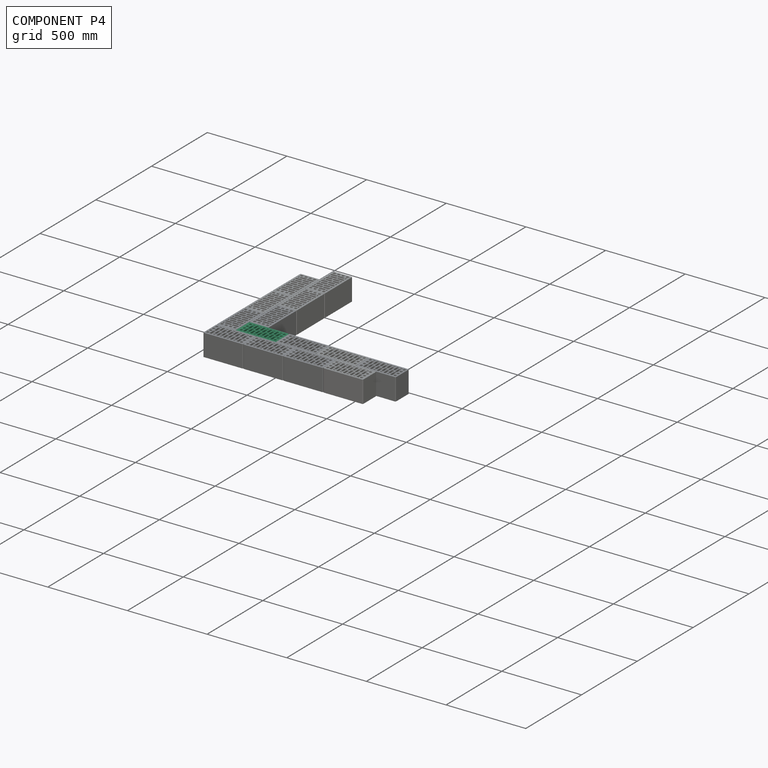
[diagram: component P4 — assembled]
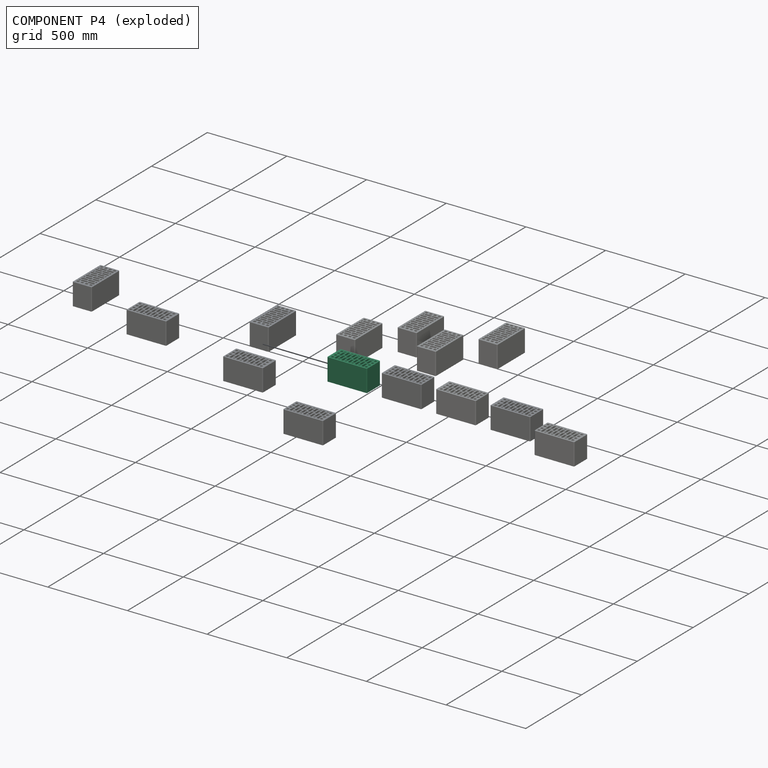
[diagram: component P4 — exploded]
COMPONENT P4 — same part as P0 (CADFS 00792924); its construction recipe is shown at P0.
Held by: PLANAR mate "Planar 5" to P3; PLANAR mate "Planar 4" to P3; PLANAR mate "Planar 6" to P11; PLANAR mate "Planar 7" to P13.
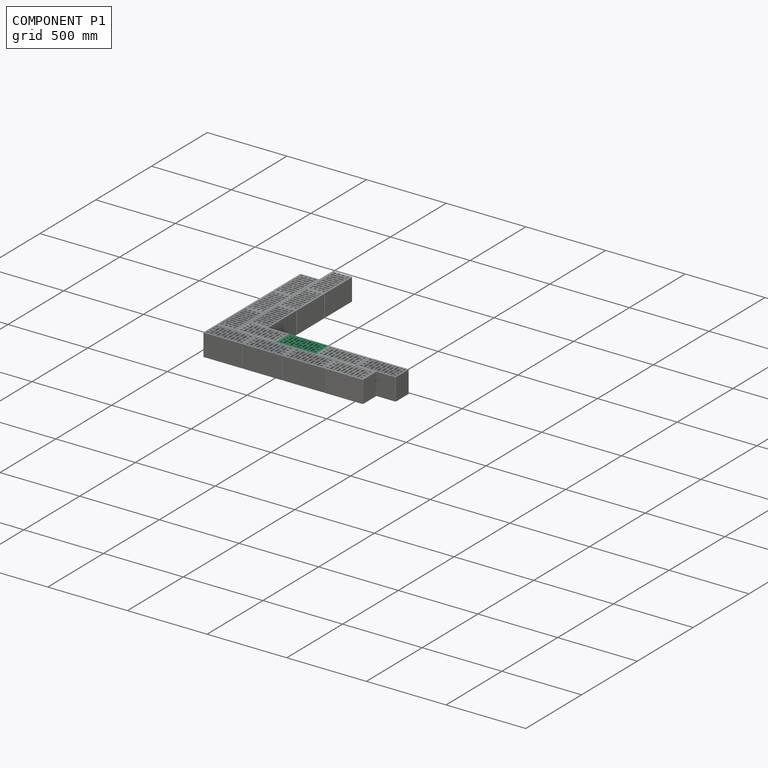
[diagram: component P1 — assembled]
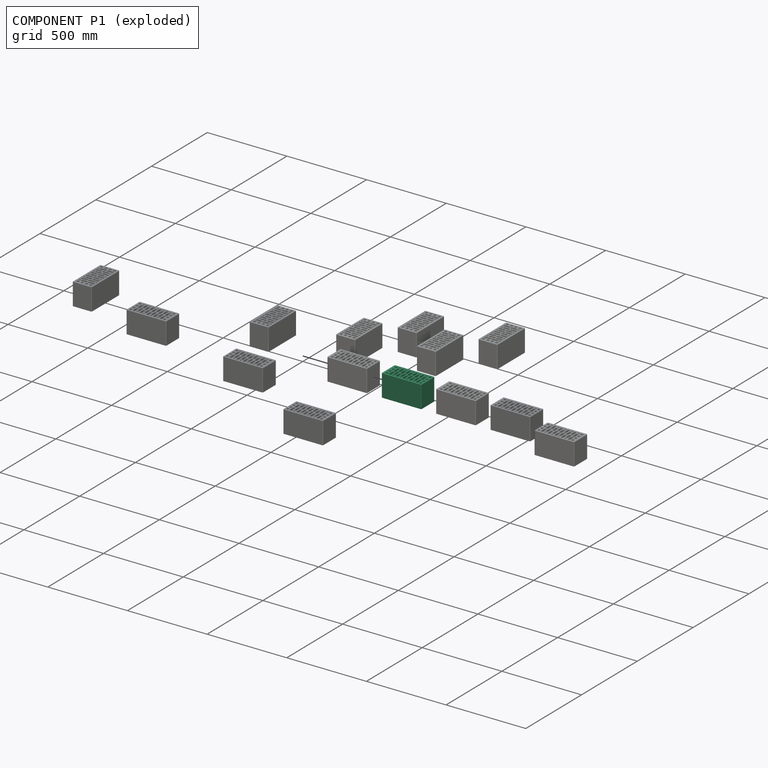
[diagram: component P1 — exploded]
COMPONENT P1 — same part as P0 (CADFS 00792924); its construction recipe is shown at P0.
Held by: no mates (free).
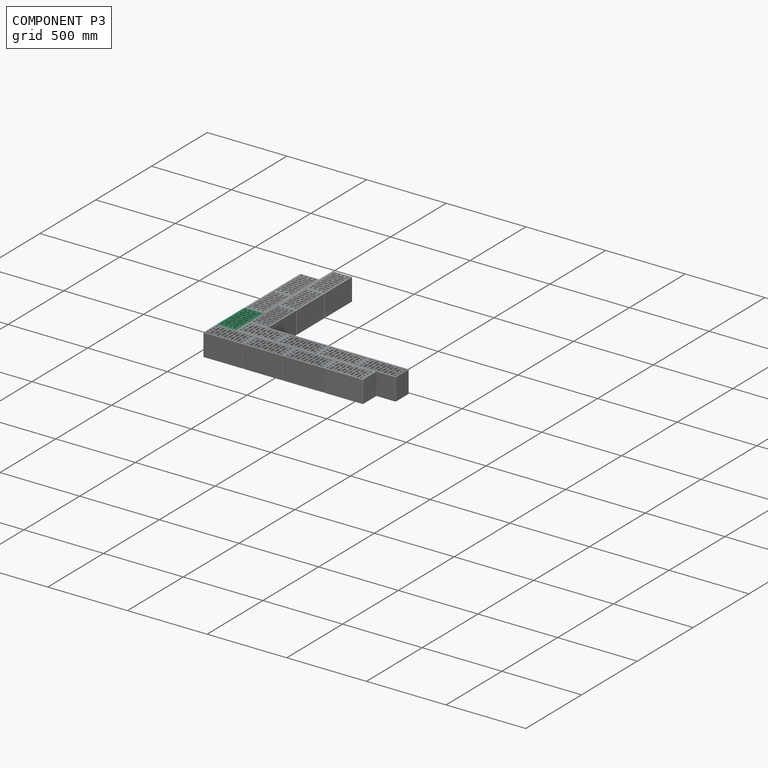
[diagram: component P3 — assembled]
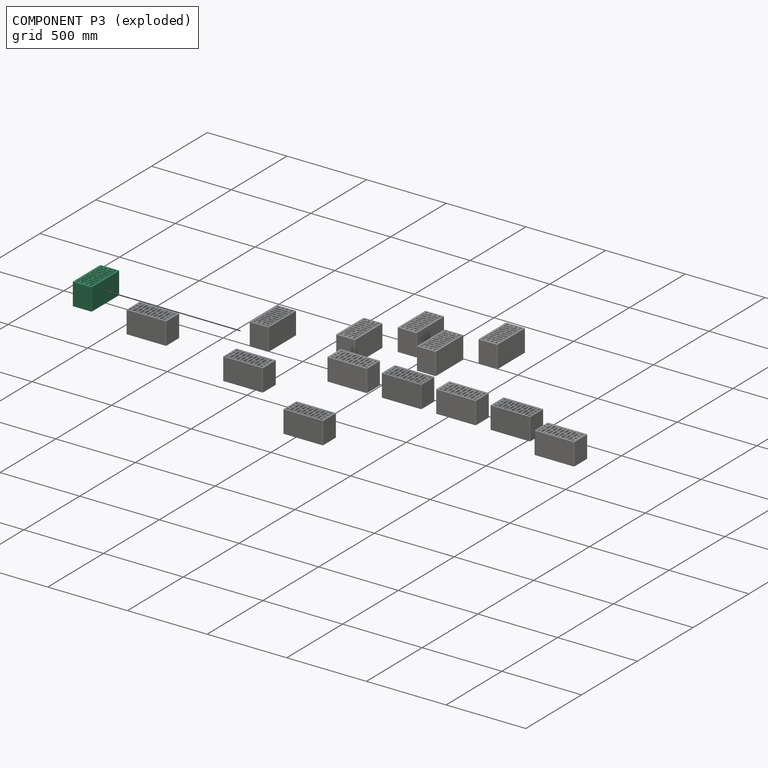
[diagram: component P3 — exploded]
COMPONENT P3 — same part as P0 (CADFS 00792924); its construction recipe is shown at P0.
Held by: PLANAR mate "Planar 1" to P11; PLANAR mate "Planar 5" to P4; PLANAR mate "Planar 9" to P13; PLANAR mate "Planar 4" to P4; PLANAR mate "Planar 8" to P13; PLANAR mate "Planar 3" to P11; PLANAR mate "Planar 2" to P11.
